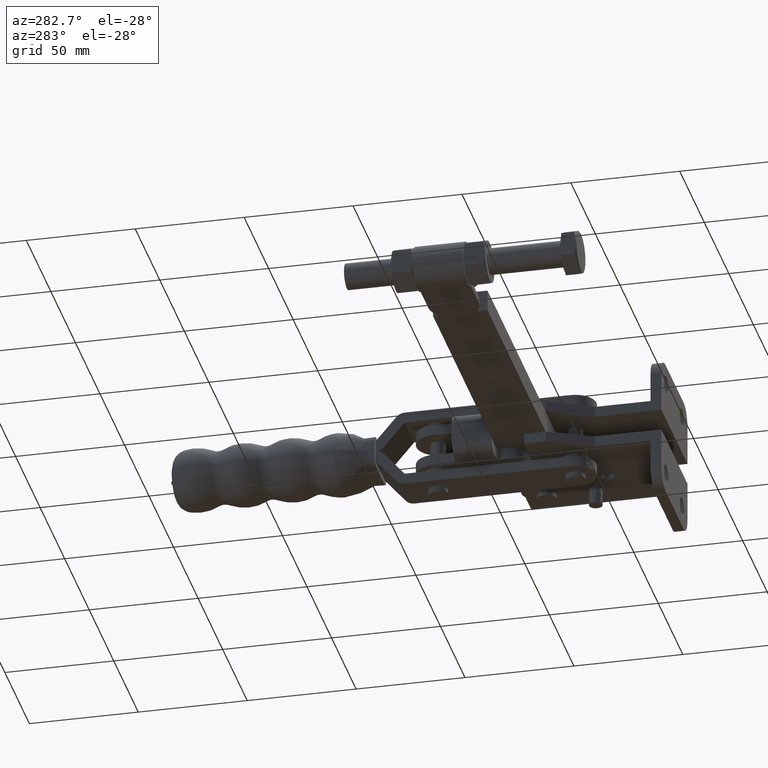
[diagram: clean part render]
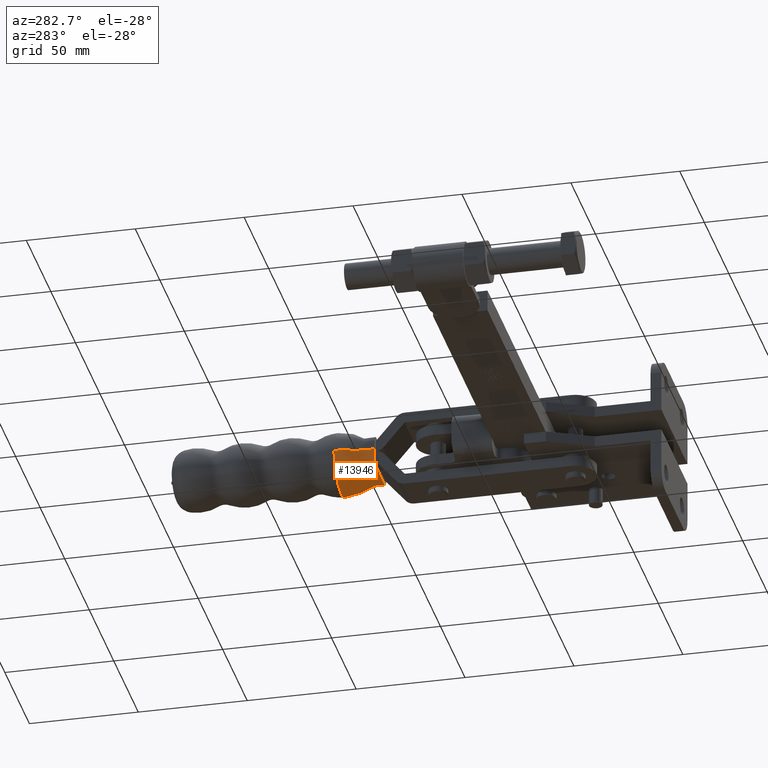
[diagram: same view with one face highlighted and labeled with its STEP entity id]
A machine part, auxiliary view. The second image highlights one B-rep face of the part: STEP entity #13946.
In plain terms, the highlighted face is a freeform B-spline surface patch.
Its self-contained STEP definition (entity closure, byte-faithful):
#10 = CARTESIAN_POINT ( 'NONE',  ( -30.01053185185525500, 159.3120009273787000, -2.921836529711458100 ) ) ;
#17 = CARTESIAN_POINT ( 'NONE',  ( -55.03486626739499600, 167.3329792274489900, -3.275034714053078400E-016 ) ) ;
#42 = CARTESIAN_POINT ( 'NONE',  ( -54.16548582597223300, 165.3823181598201600, 3.454196989813683900 ) ) ;
#96 = CARTESIAN_POINT ( 'NONE',  ( -29.91832499443099300, 165.4016068969946500, -4.243388722230291100 ) ) ;
#131 = CARTESIAN_POINT ( 'NONE',  ( -55.74652299339197000, 172.4300621991223500, 4.625655915123636500 ) ) ;
#179 = CARTESIAN_POINT ( 'NONE',  ( -28.58406031979945900, 172.4460272080390000, -5.534081401126637300 ) ) ;
#207 = CARTESIAN_POINT ( 'NONE',  ( -53.82298042692794100, 158.1116034387089500, 5.262187590426330000 ) ) ;
#255 = CARTESIAN_POINT ( 'NONE',  ( -30.96208082822982600, 158.1365641505115900, -6.447487020183201500 ) ) ;
#286 = CARTESIAN_POINT ( 'NONE',  ( -52.86891405538529700, 163.4881592351077300, 6.489217865222657100 ) ) ;
#337 = CARTESIAN_POINT ( 'NONE',  ( -32.18371685770659200, 163.6366742812349500, -7.284445270039991100 ) ) ;
#369 = CARTESIAN_POINT ( 'NONE',  ( -52.94077917044261700, 169.9701108723987800, 9.206207722965919200 ) ) ;
#420 = CARTESIAN_POINT ( 'NONE',  ( -31.81827798375765000, 169.9909898208158800, -9.962855661030786800 ) ) ;
#444 = CARTESIAN_POINT ( 'NONE',  ( -49.77550734992797700, 156.8555057994146600, 7.399999999999997700 ) ) ;
#451 = VECTOR ( 'NONE', #2764, 1000.000000000000000 ) ;
#499 = CARTESIAN_POINT ( 'NONE',  ( -35.65144055819204300, 156.8552230492491000, -7.400000000000014600 ) ) ;
#529 = CARTESIAN_POINT ( 'NONE',  ( -48.45312621003839800, 161.5266519415627600, 7.375354367326864700 ) ) ;
#549 = CARTESIAN_POINT ( 'NONE',  ( -29.99812900343650000, 160.8114756882146100, -8.690113427833856300E-015 ) ) ;
#581 = CARTESIAN_POINT ( 'NONE',  ( -37.66018564373222000, 161.7066644980565400, -7.399878044846540000 ) ) ;
#610 = CARTESIAN_POINT ( 'NONE',  ( -46.94354951863471800, 167.7295641477970200, 12.40203097414508400 ) ) ;
#663 = CARTESIAN_POINT ( 'NONE',  ( -39.47443347571038400, 167.7746711135998500, -13.05742852621593600 ) ) ;
#695 = CARTESIAN_POINT ( 'NONE',  ( -44.79700276006769900, 174.8554061381716200, 14.32017887598920000 ) ) ;
#742 = CARTESIAN_POINT ( 'NONE',  ( -41.06795610806698700, 174.8553314862619200, -14.50000000000000200 ) ) ;
#773 = CARTESIAN_POINT ( 'NONE',  ( -41.28112603155186400, 159.9238375114901200, 7.400000000000061600 ) ) ;
#827 = CARTESIAN_POINT ( 'NONE',  ( -44.13999833464217900, 159.9028237302933300, -7.401047931045069600 ) ) ;
#861 = CARTESIAN_POINT ( 'NONE',  ( -39.59812557805086200, 165.9206652106610700, 12.35891047920784300 ) ) ;
#915 = CARTESIAN_POINT ( 'NONE',  ( -46.68790751750540100, 165.8532797955492700, -11.78674320466696700 ) ) ;
#943 = CARTESIAN_POINT ( 'NONE',  ( -36.49258739439980600, 172.5416253445966100, 13.51242964295950300 ) ) ;
#984 = CARTESIAN_POINT ( 'NONE',  ( -27.49784786396110900, 174.8550598258110500, -5.867937290491051900E-015 ) ) ;
#998 = CARTESIAN_POINT ( 'NONE',  ( -49.99008970719840100, 172.5408345018066400, -12.20544069266286200 ) ) ;
#1023 = EDGE_CURVE ( 'NONE', #22162, #5192, #23300, .T. ) ;
#1030 = CARTESIAN_POINT ( 'NONE',  ( -34.22088160110315200, 158.2267033922273100, 7.399999999999997700 ) ) ;
#1083 = CARTESIAN_POINT ( 'NONE',  ( -50.94196284809202500, 158.1922918180335100, -7.400000000000001200 ) ) ;
#1106 = CARTESIAN_POINT ( 'NONE',  ( -33.00090943691111500, 163.7450467838650100, 7.535559182082945300 ) ) ;
#1158 = CARTESIAN_POINT ( 'NONE',  ( -51.81242803062977500, 163.6370672290604800, -7.284445270039994600 ) ) ;
#1189 = CARTESIAN_POINT ( 'NONE',  ( -31.05511215597412500, 169.9696727424982000, 9.206207722965933400 ) ) ;
#1252 = CARTESIAN_POINT ( 'NONE',  ( -53.92123600950711200, 169.9298284560750900, -7.912278353078953300 ) ) ;
#1280 = CARTESIAN_POINT ( 'NONE',  ( -30.17341083614880400, 156.8551133843888600, 5.262187590426331800 ) ) ;
#1342 = CARTESIAN_POINT ( 'NONE',  ( -53.99820820125310000, 156.8555903338042600, -4.348231599378971500 ) ) ;
#1369 = CARTESIAN_POINT ( 'NONE',  ( -30.08243040831931500, 160.9460203885532800, 4.361906280226350000 ) ) ;
#1425 = CARTESIAN_POINT ( 'NONE',  ( -53.94036847211530300, 160.9063050107911000, -3.601512774937536000 ) ) ;
#1457 = CARTESIAN_POINT ( 'NONE',  ( -29.37101595736226000, 167.3877777166116200, 4.371266485217666400 ) ) ;
#1509 = CARTESIAN_POINT ( 'NONE',  ( -54.76605723790346000, 167.3701724832752400, -3.575128958162247200 ) ) ;
#1535 = CARTESIAN_POINT ( 'NONE',  ( -27.99210099118675600, 174.8550697202809700, 3.825103683975492200 ) ) ;
#1595 = CARTESIAN_POINT ( 'NONE',  ( -56.28759477348128100, 174.8556361687174400, -2.571108050766369500 ) ) ;
#1626 = CARTESIAN_POINT ( 'NONE',  ( -29.99904199893869400, 159.2801951201578300, 0.9809219685680439200 ) ) ;
#1688 = CARTESIAN_POINT ( 'NONE',  ( -53.99815971285430300, 159.2777052649426000, -0.3289859883935479800 ) ) ;
#1710 = CARTESIAN_POINT ( 'NONE',  ( -29.66564042045369100, 165.3411039990127700, 0.3704850414950774400 ) ) ;
#1737 = CARTESIAN_POINT ( 'NONE',  ( -56.49789724061080400, 172.3888648315816900, -3.630406897098296000E-016 ) ) ;
#1763 = CARTESIAN_POINT ( 'NONE',  ( -54.33043622379091200, 165.3415977643858800, -3.149123926484167700E-016 ) ) ;
#1791 = CARTESIAN_POINT ( 'NONE',  ( -27.49789724642226600, 172.3882842796115800, -0.4266562176204395400 ) ) ;
#1824 = CARTESIAN_POINT ( 'NONE',  ( -53.99818393150189900, 158.0679241497375400, 0.9702240728754804000 ) ) ;
#1871 = CARTESIAN_POINT ( 'NONE',  ( -29.99818383017069900, 158.0727456620921300, -1.934530261371081100 ) ) ;
#1910 = CARTESIAN_POINT ( 'NONE',  ( -53.93877996382811100, 163.1263309956179900, 2.059429438747201400 ) ) ;
#1956 = CARTESIAN_POINT ( 'NONE',  ( -30.10216412009782900, 163.1770216821593100, -3.058837524714856000 ) ) ;
#1968 = CARTESIAN_POINT ( 'NONE',  ( -56.49789724061080400, 172.3888648315816900, -3.630406897098296000E-016 ) ) ;
#1984 = CARTESIAN_POINT ( 'NONE',  ( -55.57706313034836400, 169.8245525707589800, 3.723030553894078700 ) ) ;
#2000 = DIRECTION ( 'NONE',  ( -0.9999999997996190700, 2.001903344682692800E-005, 1.096953554745389000E-017 ) ) ;
#2042 = CARTESIAN_POINT ( 'NONE',  ( -28.62838417513417600, 169.8410350153581300, -4.527037572557110100 ) ) ;
#2070 = CARTESIAN_POINT ( 'NONE',  ( -53.99820820125309200, 156.8555903338042600, 4.348231599378969700 ) ) ;
#2092 = B_SPLINE_CURVE_WITH_KNOTS ( 'NONE', 3,
 ( #15526, #3772, #19457, #7786, #21411, #9736, #23400 ),
 .UNSPECIFIED., .F., .F.,
 ( 4, 1, 1, 1, 4 ),
 ( 0.0000000000000000000, 0.001367397930352761900, 0.002734795862658785100, 0.004102193794964791500, 0.005469591725878869400 ),
 .UNSPECIFIED. ) ;
#2129 = CARTESIAN_POINT ( 'NONE',  ( -30.17341083614877200, 156.8551133843888600, -5.262187590426333500 ) ) ;
#2160 = CARTESIAN_POINT ( 'NONE',  ( -53.72476107689123400, 160.9989239343670700, 5.237475569584044700 ) ) ;
#2217 = CARTESIAN_POINT ( 'NONE',  ( -31.03187929348705200, 161.0934841465709400, -6.363324305820262000 ) ) ;
#2246 = CARTESIAN_POINT ( 'NONE',  ( -53.38988415262491600, 167.4893144473720700, 7.795587145182103100 ) ) ;
#2295 = CARTESIAN_POINT ( 'NONE',  ( -31.59080281201105600, 167.5404888791817400, -9.048820260900077600 ) ) ;
#2323 = CARTESIAN_POINT ( 'NONE',  ( -53.22991396493043900, 174.8555749569031000, 9.217457724937361300 ) ) ;
#2378 = CARTESIAN_POINT ( 'NONE',  ( -31.50636748363422200, 174.8551400724994100, -10.02457953256474000 ) ) ;
#2397 = B_SPLINE_CURVE_WITH_KNOTS ( 'NONE', 3,
 ( #20683, #7023, #18737, #22660, #10977, #24659, #12939 ),
 .UNSPECIFIED., .F., .F.,
 ( 4, 1, 1, 1, 4 ),
 ( 8.673617379884035500E-019, 0.001367408593344762900, 0.002734817187957831200, 0.004102225782570891000, 0.005469634375344124800 ),
 .UNSPECIFIED. ) ;
#2413 = CARTESIAN_POINT ( 'NONE',  ( -49.79991466125416400, 159.6158286790738100, 7.379753156974617300 ) ) ;
#2463 = CARTESIAN_POINT ( 'NONE',  ( -35.61568322559502100, 159.7043172632530700, -7.391871536314698500 ) ) ;
#2497 = CARTESIAN_POINT ( 'NONE',  ( -48.84990026154925900, 165.7580305673096500, 10.90454232679085100 ) ) ;
#2515 = CARTESIAN_POINT ( 'NONE',  ( -29.66564042045369800, 165.3411039990127700, -9.524348031895438500E-015 ) ) ;
#2517 = VECTOR ( 'NONE', #4423, 1000.000000000000000 ) ;
#2544 = CARTESIAN_POINT ( 'NONE',  ( -37.30814863385748500, 165.8530920218422900, -11.78674320466697100 ) ) ;
#2573 = CARTESIAN_POINT ( 'NONE',  ( -47.50320096036539000, 172.5418457664379200, 13.51242964295947500 ) ) ;
#2592 = CARTESIAN_POINT ( 'NONE',  ( -27.87524405219491500, 174.8550673809180600, -3.795344323209579600 ) ) ;
#2626 = CARTESIAN_POINT ( 'NONE',  ( -39.19873926334700100, 172.5424299803930200, -14.32017887598917500 ) ) ;
#2653 = CARTESIAN_POINT ( 'NONE',  ( -42.70651082262935500, 158.3896151656263400, 7.400000000000022600 ) ) ;
#2677 = CARTESIAN_POINT ( 'NONE',  ( -53.99820820125310000, 156.8555903338042600, -3.900000000121559600 ) ) ;
#2687 = CARTESIAN_POINT ( 'NONE',  ( -56.49784785815009500, 174.8556403777810100, -9.335360649693782700E-017 ) ) ;
#2710 = CARTESIAN_POINT ( 'NONE',  ( -42.70651082262935500, 158.3896151656263400, -7.400000000000022600 ) ) ;
#2737 = CARTESIAN_POINT ( 'NONE',  ( -49.30032307497037200, 174.8554962902916000, -12.66990263113675800 ) ) ;
#2744 = CARTESIAN_POINT ( 'NONE',  ( -41.23460551426657600, 164.5246853654079800, 8.109078800241105600 ) ) ;
#2764 = DIRECTION ( 'NONE',  ( 1.096973980815269500E-017, 1.020321491645312400E-017, 1.000000000000000000 ) ) ;
#2801 = CARTESIAN_POINT ( 'NONE',  ( -44.26660453190712000, 164.4806636520141900, -8.095099330426370100 ) ) ;
#2836 = CARTESIAN_POINT ( 'NONE',  ( -39.31949340422634300, 170.0904174365443900, 13.90033456098710500 ) ) ;
#2887 = CARTESIAN_POINT ( 'NONE',  ( -47.26965106849309000, 170.0694471675603600, -13.14438355145014200 ) ) ;
#2917 = CARTESIAN_POINT ( 'NONE',  ( -35.65144055819207800, 156.8552230492491000, 7.400000000000000400 ) ) ;
#2951 = ORIENTED_EDGE ( 'NONE', *, *, #10645, .T. ) ;
#2969 = CARTESIAN_POINT ( 'NONE',  ( -49.77550734992798500, 156.8555057994146600, -7.400000000000000400 ) ) ;
#3004 = CARTESIAN_POINT ( 'NONE',  ( -34.14664740419748800, 161.3882000867956800, 7.338611246194707500 ) ) ;
#3061 = CARTESIAN_POINT ( 'NONE',  ( -50.97413579613108700, 161.2810199593442100, -7.298947582133696000 ) ) ;
#3093 = CARTESIAN_POINT ( 'NONE',  ( -32.35747213312594500, 167.5737094264068200, 9.718816108078376800 ) ) ;
#3148 = CARTESIAN_POINT ( 'NONE',  ( -52.40518577466004000, 167.5409055630110200, -9.048820260900093600 ) ) ;
#3177 = CARTESIAN_POINT ( 'NONE',  ( -30.76578175718078300, 174.8551252466889700, 9.217457724937377300 ) ) ;
#3238 = CARTESIAN_POINT ( 'NONE',  ( -54.17832370961313200, 174.8555939431494700, -7.920762436608535000 ) ) ;
#3264 = CARTESIAN_POINT ( 'NONE',  ( -30.20573529207217700, 159.3803719987688500, 5.254037231023033900 ) ) ;
#3322 = CARTESIAN_POINT ( 'NONE',  ( -53.97035360128449400, 159.3515019923874300, -4.352741694459543200 ) ) ;
#3353 = CARTESIAN_POINT ( 'NONE',  ( -30.03305634290903800, 165.4271077435335800, 5.168155539431762900 ) ) ;
#3412 = CARTESIAN_POINT ( 'NONE',  ( -54.07774922759747900, 165.4020905453172600, -4.243388722230294600 ) ) ;
#3441 = CARTESIAN_POINT ( 'NONE',  ( -28.24926984357838900, 172.4295117306915900, 4.625655915123646300 ) ) ;
#3463 = VERTEX_POINT ( 'NONE', #2677 ) ;
#3471 = EDGE_CURVE ( 'NONE', #3463, #13868, #10240, .T. ) ;
#3494 = CARTESIAN_POINT ( 'NONE',  ( -56.00364355991340700, 172.4165022870884300, -3.825103683975492200 ) ) ;
#3521 = CARTESIAN_POINT ( 'NONE',  ( -29.99818383017069900, 158.0727456620921300, 1.934530261371075300 ) ) ;
#3577 = CARTESIAN_POINT ( 'NONE',  ( -53.99818393150188500, 158.0679241497375400, -0.9702240728754850700 ) ) ;
#3596 = EDGE_CURVE ( 'NONE', #13868, #6100, #8725, .T. ) ;
#3608 = CARTESIAN_POINT ( 'NONE',  ( -30.03106721629260900, 163.0931691648536300, 1.042437647470664900 ) ) ;
#3654 = CARTESIAN_POINT ( 'NONE',  ( -53.97052869974416500, 163.0858010293488300, -0.3502884369014792100 ) ) ;
#3681 = CARTESIAN_POINT ( 'NONE',  ( -28.01642117851967800, 169.7891798659850300, 0.4090090033414615600 ) ) ;
#3712 = CARTESIAN_POINT ( 'NONE',  ( -53.99820820125308500, 156.8555903338042600, 0.3249999999999965100 ) ) ;
#3742 = CARTESIAN_POINT ( 'NONE',  ( -55.97947737204695800, 169.7897396593431600, -3.422081880522385000E-016 ) ) ;
#3768 = CARTESIAN_POINT ( 'NONE',  ( -29.99820820606220600, 156.8551098770015200, -0.9702240728754846200 ) ) ;
#3772 = CARTESIAN_POINT ( 'NONE',  ( -50.94198960878859600, 156.8555291512587600, -7.400000000000002100 ) ) ;
#3802 = CARTESIAN_POINT ( 'NONE',  ( -53.99545361847899700, 160.8173919111964100, 1.002660264734206000 ) ) ;
#3858 = CARTESIAN_POINT ( 'NONE',  ( -30.01371786014572500, 160.8395420749682800, -1.983495367199034300 ) ) ;
#3864 = CARTESIAN_POINT ( 'NONE',  ( -53.99818395705369100, 158.0666477993734100, -2.443292355657275600E-016 ) ) ;
#3886 = CARTESIAN_POINT ( 'NONE',  ( -54.92114404214905200, 167.3494773252845100, 2.372531379243163900 ) ) ;
#3937 = CARTESIAN_POINT ( 'NONE',  ( -29.22993818648156200, 167.3696612748529200, -3.575128958162240100 ) ) ;
#3971 = CARTESIAN_POINT ( 'NONE',  ( -56.00359473092446900, 174.8556304833111600, 3.825103683975485900 ) ) ;
#4015 = CARTESIAN_POINT ( 'NONE',  ( -28.24922128614880600, 174.8550748675807300, -4.625655915123629400 ) ) ;
#4048 = CARTESIAN_POINT ( 'NONE',  ( -53.97035360128449400, 159.3515019923874300, 4.352741694459543200 ) ) ;
#4098 = CARTESIAN_POINT ( 'NONE',  ( -30.20573529207214800, 159.3803719987688500, -5.254037231023033900 ) ) ;
#4101 = EDGE_LOOP ( 'NONE', ( #14494, #22883, #2951, #4323, #20466, #20502, #20294, #18927, #9318 ) ) ;
#4126 = CARTESIAN_POINT ( 'NONE',  ( -53.71665681768043800, 165.4604148014602700, 6.228930661001821400 ) ) ;
#4178 = CARTESIAN_POINT ( 'NONE',  ( -30.99456631826975800, 165.5176038695769300, -7.696028669533542500 ) ) ;
#4205 = CARTESIAN_POINT ( 'NONE',  ( -54.17837095906308800, 172.4953676070197700, 7.920762436608536700 ) ) ;
#4256 = CARTESIAN_POINT ( 'NONE',  ( -30.76582848705670200, 172.5208529126128700, -9.217457724937363000 ) ) ;
#4286 = CARTESIAN_POINT ( 'NONE',  ( -50.94196284809203200, 158.1922918180335100, 7.399999999999999500 ) ) ;
#4323 = ORIENTED_EDGE ( 'NONE', *, *, #11278, .T. ) ;
#4346 = CARTESIAN_POINT ( 'NONE',  ( -34.22088160110313000, 158.2267033922273100, -7.400000000000000400 ) ) ;
#4376 = CARTESIAN_POINT ( 'NONE',  ( -49.91917372004626700, 163.8898610578691800, 7.687483891587497500 ) ) ;
#4423 = DIRECTION ( 'NONE',  ( -1.096973980815269500E-017, -1.020321491645312400E-017, -1.000000000000000000 ) ) ;
#4427 = CARTESIAN_POINT ( 'NONE',  ( -35.43290205384930400, 164.0727658160435600, -7.849054342947153100 ) ) ;
#4458 = CARTESIAN_POINT ( 'NONE',  ( -49.67966320880831400, 170.0396765808930900, 11.93950154989965300 ) ) ;
#4480 = CARTESIAN_POINT ( 'NONE',  ( -28.01642117851967800, 169.7891798659850300, -1.046793864630354500E-014 ) ) ;
#4516 = CARTESIAN_POINT ( 'NONE',  ( -36.72623627614525800, 170.0692360985868600, -13.14438355145014900 ) ) ;
#4547 = CARTESIAN_POINT ( 'NONE',  ( -44.11620239874102400, 156.8553925055995300, 7.399999999999995000 ) ) ;
#4597 = CARTESIAN_POINT ( 'NONE',  ( -41.28987487046624900, 156.8553359252542000, -7.400000000000000400 ) ) ;
#4633 = CARTESIAN_POINT ( 'NONE',  ( -42.73278156585629300, 161.8675610961295800, 7.400000000000075000 ) ) ;
#4684 = CARTESIAN_POINT ( 'NONE',  ( -42.73278156585629300, 161.8675610961295800, -7.400000000000075000 ) ) ;
#4704 = CARTESIAN_POINT ( 'NONE',  ( -53.59301707350579800, 174.8555822258763900, -8.910927439636280300 ) ) ;
#4709 = CARTESIAN_POINT ( 'NONE',  ( -41.15295623684037500, 167.7869829083095100, 13.20995705279834800 ) ) ;
#4765 = CARTESIAN_POINT ( 'NONE',  ( -44.52154574107709800, 167.7747721519091300, -13.05742852621594400 ) ) ;
#4797 = CARTESIAN_POINT ( 'NONE',  ( -39.19869296204353000, 174.8552940654204800, 14.32017887598916800 ) ) ;
#4847 = CARTESIAN_POINT ( 'NONE',  ( -47.50315464403841000, 174.8554603127166400, -13.51242964295948600 ) ) ;
#4880 = CARTESIAN_POINT ( 'NONE',  ( -35.61568322559505600, 159.7043172632530700, 7.391871536314687900 ) ) ;
#4942 = CARTESIAN_POINT ( 'NONE',  ( -49.79991466125417100, 159.6158286790738100, -7.379753156974617300 ) ) ;
#4974 = CARTESIAN_POINT ( 'NONE',  ( -33.80416669677869400, 165.6844291066377100, 10.15772436167573100 ) ) ;
#5027 = CARTESIAN_POINT ( 'NONE',  ( -51.23286260179786200, 165.6259286151002600, -9.513137374335332900 ) ) ;
#5053 = CARTESIAN_POINT ( 'NONE',  ( -31.50641402270041500, 172.5303991568985700, 10.02457953256476700 ) ) ;
#5104 = CARTESIAN_POINT ( 'NONE',  ( -53.22996069480635100, 172.5213026228270800, -9.217457724937384400 ) ) ;
#5135 = CARTESIAN_POINT ( 'NONE',  ( -30.96208082822980100, 158.1365641505115900, 6.447487020183214800 ) ) ;
#5186 = CARTESIAN_POINT ( 'NONE',  ( -53.82298042692792000, 158.1116034387089500, -5.262187590426344200 ) ) ;
#5192 = VERTEX_POINT ( 'NONE', #16523 ) ;
#5213 = CARTESIAN_POINT ( 'NONE',  ( -30.40050221057209300, 163.3540566607933600, 5.357960704582399800 ) ) ;
#5273 = CARTESIAN_POINT ( 'NONE',  ( -53.79827879687443500, 163.2796877570372700, -4.483788916191819900 ) ) ;
#5300 = CARTESIAN_POINT ( 'NONE',  ( -28.90128785171978600, 169.8621918344328800, 5.449616005146326700 ) ) ;
#5355 = CARTESIAN_POINT ( 'NONE',  ( -55.36751229974311200, 169.8415703068592100, -4.527037572557115500 ) ) ;
#5376 = CARTESIAN_POINT ( 'NONE',  ( -29.99820820606219500, 156.8551098770015200, 2.905685794050668000 ) ) ;
#5434 = CARTESIAN_POINT ( 'NONE',  ( -53.99820820125307100, 156.8555903338042600, -1.934530261371077300 ) ) ;
#5460 = CARTESIAN_POINT ( 'NONE',  ( -30.01371786014572900, 160.8395420749682500, 1.983495367199032100 ) ) ;
#5519 = CARTESIAN_POINT ( 'NONE',  ( -53.99545361847896900, 160.8173919111964100, -1.002660264734209300 ) ) ;
#5544 = CARTESIAN_POINT ( 'NONE',  ( -28.98136457877749500, 167.3356484633964400, 1.174141167624054500 ) ) ;
#5591 = EDGE_CURVE ( 'NONE', #5192, #6100, #21481, .T. ) ;
#5604 = CARTESIAN_POINT ( 'NONE',  ( -55.03486626739499600, 167.3329792274489900, -0.3877210822063194000 ) ) ;
#5634 = CARTESIAN_POINT ( 'NONE',  ( -27.49784786396112300, 174.8550598258110500, 0.4266562176204433700 ) ) ;
#5664 = CARTESIAN_POINT ( 'NONE',  ( -53.99815971285429600, 159.2777052649426000, 0.3289859883935474200 ) ) ;
#5690 = CARTESIAN_POINT ( 'NONE',  ( -56.49784785815008800, 174.8556403777810100, -6.863658699046109400E-016 ) ) ;
#5721 = CARTESIAN_POINT ( 'NONE',  ( -29.99904199893869000, 159.2801951201578300, -0.9809219685680474800 ) ) ;
#5747 = CARTESIAN_POINT ( 'NONE',  ( -54.31833187597288800, 165.3450849826672600, 1.123504302213652400 ) ) ;
#5792 = CARTESIAN_POINT ( 'NONE',  ( -29.73483244072726000, 165.3591242170399800, -2.280076279857010200 ) ) ;
#5827 = CARTESIAN_POINT ( 'NONE',  ( -56.28764390878302500, 172.4012068928482800, 2.571108050766369500 ) ) ;
#5889 = CARTESIAN_POINT ( 'NONE',  ( -27.99214982017571900, 172.4159415240580700, -3.825103683975478800 ) ) ;
#5920 = CARTESIAN_POINT ( 'NONE',  ( -53.99818351291226300, 158.0888337308424800, 3.565082673646924800 ) ) ;
#5972 = CARTESIAN_POINT ( 'NONE',  ( -29.99818332338375300, 158.0980609172050600, -4.348231599378971500 ) ) ;
#6002 = CARTESIAN_POINT ( 'NONE',  ( -53.79827879687444900, 163.2796877570372900, 4.483788916191817200 ) ) ;
#6051 = CARTESIAN_POINT ( 'NONE',  ( -30.40050221057207100, 163.3540566607933300, -5.357960704582397100 ) ) ;
#6086 = CARTESIAN_POINT ( 'NONE',  ( -54.70979536431112000, 169.8888350237187400, 6.478196823743306100 ) ) ;
#6089 = CARTESIAN_POINT ( 'NONE',  ( -29.99820820606220900, 156.8551098770015200, -1.127570259384924600E-014 ) ) ;
#6100 = VERTEX_POINT ( 'NONE', #2687 ) ;
#6132 = CARTESIAN_POINT ( 'NONE',  ( -30.07465693052545000, 169.9293510706102700, -7.912278353078922200 ) ) ;
#6160 = CARTESIAN_POINT ( 'NONE',  ( -51.84883284933828000, 156.8555473053871800, 7.228372528394113600 ) ) ;
#6214 = CARTESIAN_POINT ( 'NONE',  ( -33.05442679852669100, 156.8551710595437500, -7.400000000000000400 ) ) ;
#6238 = CARTESIAN_POINT ( 'NONE',  ( -50.97413579613111500, 161.2810199593442100, 7.298947582133696900 ) ) ;
#6291 = CARTESIAN_POINT ( 'NONE',  ( -34.14664740419745900, 161.3882000867956800, -7.338611246194704800 ) ) ;
#6322 = CARTESIAN_POINT ( 'NONE',  ( -50.58887436264854600, 167.6163008913283400, 10.48945490821284000 ) ) ;
#6342 = CARTESIAN_POINT ( 'NONE',  ( -29.99818396185493400, 158.0661673425707100, -9.336390145452519200E-015 ) ) ;
#6343 = CARTESIAN_POINT ( 'NONE',  ( -38.20250353860655700, 174.8552741226711200, -14.12260381169060100 ) ) ;
#6372 = CARTESIAN_POINT ( 'NONE',  ( -34.78464796001191000, 167.6654554374176500, -11.37404302906071900 ) ) ;
#6402 = CARTESIAN_POINT ( 'NONE',  ( -49.99004336963022200, 174.8555100978252600, 12.20544069266287000 ) ) ;
#6419 = CARTESIAN_POINT ( 'NONE',  ( -27.49784786396110900, 174.8550598258110500, -5.867937290491051900E-015 ) ) ;
#6455 = CARTESIAN_POINT ( 'NONE',  ( -36.49254107807279700, 174.8552398908753700, -13.51242964295949600 ) ) ;
#6492 = CARTESIAN_POINT ( 'NONE',  ( -44.13999833464217200, 159.9028237302933300, 7.401047931045059000 ) ) ;
#6543 = CARTESIAN_POINT ( 'NONE',  ( -41.28112603155186400, 159.9238375114901200, -7.400000000000061600 ) ) ;
#6573 = CARTESIAN_POINT ( 'NONE',  ( -42.80549376486603600, 165.9384890344237000, 12.49517666581065200 ) ) ;
#6614 = CARTESIAN_POINT ( 'NONE',  ( -29.99820820606220900, 156.8551098770015200, -3.899999999999976400 ) ) ;
#6621 = CARTESIAN_POINT ( 'NONE',  ( -42.80549376486603600, 165.9384890344237000, -12.49517666581063800 ) ) ;
#6647 = CARTESIAN_POINT ( 'NONE',  ( -56.12045166991631400, 174.8556328226741200, -3.795344323209568000 ) ) ;
#6656 = CARTESIAN_POINT ( 'NONE',  ( -41.06800238476648700, 172.5436964312583000, 14.50000000000662900 ) ) ;
#6708 = CARTESIAN_POINT ( 'NONE',  ( -44.79704906137116900, 172.5425420531441900, -14.32017887598918400 ) ) ;
#6737 = CARTESIAN_POINT ( 'NONE',  ( -37.77089492443956700, 158.3349972417551000, 7.400000000000000400 ) ) ;
#6790 = CARTESIAN_POINT ( 'NONE',  ( -48.34494745532518300, 158.2738172686929700, -7.400000000000005700 ) ) ;
#6817 = CARTESIAN_POINT ( 'NONE',  ( -35.43290205384933200, 164.0727658160435900, 7.849054342947142400 ) ) ;
#6870 = CARTESIAN_POINT ( 'NONE',  ( -49.91917372004626000, 163.8898610578691800, -7.687483891587501000 ) ) ;
#6896 = CARTESIAN_POINT ( 'NONE',  ( -32.88588162187334500, 170.0156346267155800, 10.88719421311606400 ) ) ;
#6951 = CARTESIAN_POINT ( 'NONE',  ( -52.17761248977620900, 169.9913973950148100, -9.962855661030804600 ) ) ;
#6976 = CARTESIAN_POINT ( 'NONE',  ( -32.14758355797705000, 156.8551529054186100, 7.228372528394118000 ) ) ;
#7023 = CARTESIAN_POINT ( 'NONE',  ( -29.99820820606220200, 156.8551098770012700, -4.348231599378971500 ) ) ;
#7036 = CARTESIAN_POINT ( 'NONE',  ( -53.03430992599582800, 156.8555710374924400, -6.447487020183215700 ) ) ;
#7067 = CARTESIAN_POINT ( 'NONE',  ( -31.03187929348703000, 161.0934841465709400, 6.363324305820283300 ) ) ;
#7127 = CARTESIAN_POINT ( 'NONE',  ( -53.72476107689117700, 160.9989239343670700, -5.237475569584056200 ) ) ;
#7154 = CARTESIAN_POINT ( 'NONE',  ( -29.86142325503901400, 167.4399038784889100, 6.342354808033370300 ) ) ;
#7212 = CARTESIAN_POINT ( 'NONE',  ( -54.44096678794397800, 167.4112787686294400, -5.295461589951461400 ) ) ;
#7245 = CARTESIAN_POINT ( 'NONE',  ( -28.58401209285961600, 174.8550815697690800, 5.534081401126663000 ) ) ;
#7304 = CARTESIAN_POINT ( 'NONE',  ( -55.74647443596240500, 174.8556253360113400, -4.625655915123638300 ) ) ;
#7328 = CARTESIAN_POINT ( 'NONE',  ( -30.01053185185524400, 159.3120009273787300, 2.921836529711459000 ) ) ;
#7396 = CARTESIAN_POINT ( 'NONE',  ( -53.99301780452477600, 159.2930305125271700, -1.950679616912083000 ) ) ;
#7428 = CARTESIAN_POINT ( 'NONE',  ( -29.73483244072726700, 165.3591242170399800, 2.280076279857012400 ) ) ;
#7487 = CARTESIAN_POINT ( 'NONE',  ( -54.31833187597286600, 165.3450849826672900, -1.123504302213655700 ) ) ;
#7512 = CARTESIAN_POINT ( 'NONE',  ( -27.53571046262612400, 172.3906669996285600, 1.286538738965417300 ) ) ;
#7549 = CARTESIAN_POINT ( 'NONE',  ( -53.99818395705369100, 158.0666477993734100, -2.443292355657275600E-016 ) ) ;
#7574 = CARTESIAN_POINT ( 'NONE',  ( -56.49789724061080400, 172.3888648315816900, -0.4266562176204421500 ) ) ;
#7603 = CARTESIAN_POINT ( 'NONE',  ( -29.99818396185493400, 158.0661673425707100, -0.3249999999999992300 ) ) ;
#7638 = CARTESIAN_POINT ( 'NONE',  ( -53.97052869974416500, 163.0858010293488300, 0.3502884369014785900 ) ) ;
#7694 = CARTESIAN_POINT ( 'NONE',  ( -30.03106721629260900, 163.0931691648536300, -1.042437647470668700 ) ) ;
#7730 = CARTESIAN_POINT ( 'NONE',  ( -55.94874568893847300, 169.7927326404305300, 1.236556816163452600 ) ) ;
#7782 = CARTESIAN_POINT ( 'NONE',  ( -28.18750088159734100, 169.8046823293577700, -2.486074867352141600 ) ) ;
#7786 = CARTESIAN_POINT ( 'NONE',  ( -53.03430992599582800, 156.8555710374893400, -6.447487020183217500 ) ) ;
#7792 = CARTESIAN_POINT ( 'NONE',  ( -53.99820820125309200, 156.8555903338042600, -1.301042606982605300E-015 ) ) ;
#7809 = CARTESIAN_POINT ( 'NONE',  ( -53.99820820125310700, 156.8555903338042600, 2.905685794050667500 ) ) ;
#7867 = CARTESIAN_POINT ( 'NONE',  ( -29.99820820606220900, 156.8551098770015200, -3.565082673646929200 ) ) ;
#7898 = CARTESIAN_POINT ( 'NONE',  ( -53.94036847211533100, 160.9063050107911300, 3.601512774937534200 ) ) ;
#7952 = CARTESIAN_POINT ( 'NONE',  ( -30.08243040831931500, 160.9460203885532800, -4.361906280226349100 ) ) ;
#7979 = CARTESIAN_POINT ( 'NONE',  ( -54.44096678794395700, 167.4112787686294700, 5.295461589951457000 ) ) ;
#8037 = CARTESIAN_POINT ( 'NONE',  ( -29.86142325503900400, 167.4399038784888800, -6.342354808033363200 ) ) ;
#8063 = EDGE_CURVE ( 'NONE', #20203, #3463, #2092, .T. ) ;
#8066 = CARTESIAN_POINT ( 'NONE',  ( -54.97699629980313300, 174.8556099318028000, 6.531058868790505100 ) ) ;
#8123 = CARTESIAN_POINT ( 'NONE',  ( -29.81737201249806900, 174.8551062604425700, -7.920762436608498500 ) ) ;
#8151 = CARTESIAN_POINT ( 'NONE',  ( -51.84560384549946800, 159.4989104142666200, 7.190825429620817400 ) ) ;
#8204 = CARTESIAN_POINT ( 'NONE',  ( -33.04374142334621900, 159.5479777255992200, -7.366671542993612000 ) ) ;
#8238 = CARTESIAN_POINT ( 'NONE',  ( -51.23286260179786200, 165.6259286151002900, 9.513137374335340000 ) ) ;
#8283 = CARTESIAN_POINT ( 'NONE',  ( -33.80416669677867200, 165.6844291066377100, -10.15772436167571300 ) ) ;
#8316 = CARTESIAN_POINT ( 'NONE',  ( -51.43260366782388400, 172.5391003503272600, 11.04840651980919100 ) ) ;
#8370 = CARTESIAN_POINT ( 'NONE',  ( -34.00569869004916500, 172.5405145097481600, -12.20544069266285300 ) ) ;
#8393 = CARTESIAN_POINT ( 'NONE',  ( -46.22546223727643200, 158.3351664940209400, 7.400000000000003000 ) ) ;
#8437 = CARTESIAN_POINT ( 'NONE',  ( -33.08692042320490900, 174.8551717136416200, -11.59516921477363600 ) ) ;
#8454 = CARTESIAN_POINT ( 'NONE',  ( -39.88018351485254000, 158.3785441682614100, -7.400000000000008300 ) ) ;
#8483 = CARTESIAN_POINT ( 'NONE',  ( -44.26660453190712000, 164.4806636520141900, 8.095099330426366500 ) ) ;
#8534 = CARTESIAN_POINT ( 'NONE',  ( -41.23460551426656900, 164.5246853654079800, -8.109078800241105600 ) ) ;
#8568 = CARTESIAN_POINT ( 'NONE',  ( -42.88937299758844500, 170.0968834836605500, 14.07235451870534200 ) ) ;
#8628 = CARTESIAN_POINT ( 'NONE',  ( -42.88937299758845300, 170.0968834836605500, -14.07235451870535000 ) ) ;
#8648 = CARTESIAN_POINT ( 'NONE',  ( -56.49784785815009500, 174.8556403777810100, -9.335360649693782700E-017 ) ) ;
#8657 = CARTESIAN_POINT ( 'NONE',  ( -39.88021400857426400, 156.8553077052062600, 7.399999999999998600 ) ) ;
#8713 = CARTESIAN_POINT ( 'NONE',  ( -46.22549186007607600, 156.8554347315358100, -7.399999999999990600 ) ) ;
#8725 = B_SPLINE_CURVE_WITH_KNOTS ( 'NONE', 3,
 ( #7792, #3864, #15534, #9747, #23404, #11715, #17, #13661, #1968, #15621 ),
 .UNSPECIFIED., .F., .F.,
 ( 4, 2, 1, 2, 1, 4 ),
 ( 0.0000000000000000000, 0.1980163457136858400, 0.2508607240512942800, 0.5695960111270812500, 0.5966649863928764600, 1.000000000000000000 ),
 .UNSPECIFIED. ) ;
#8739 = CARTESIAN_POINT ( 'NONE',  ( -37.66018564373222700, 161.7066644980565400, 7.399878044846548900 ) ) ;
#8787 = CARTESIAN_POINT ( 'NONE',  ( -48.45312621003839800, 161.5266519415627600, -7.375354367326870000 ) ) ;
#8815 = CARTESIAN_POINT ( 'NONE',  ( -34.78464796001192400, 167.6654554374176500, 11.37404302906071300 ) ) ;
#8869 = CARTESIAN_POINT ( 'NONE',  ( -50.58887436264856800, 167.6163008913283100, -10.48945490821284900 ) ) ;
#8901 = CARTESIAN_POINT ( 'NONE',  ( -32.56313842714966000, 174.8551612280322700, 11.04840651980919800 ) ) ;
#8957 = CARTESIAN_POINT ( 'NONE',  ( -52.48932823847697200, 174.8555601310926600, -10.02457953256476000 ) ) ;
#8989 = CARTESIAN_POINT ( 'NONE',  ( -32.15070672666092100, 159.4985161414623700, 7.190825429620822700 ) ) ;
#9040 = CARTESIAN_POINT ( 'NONE',  ( -53.01121827295661900, 159.4356151323944200, -6.419729016303509900 ) ) ;
#9072 = CARTESIAN_POINT ( 'NONE',  ( -30.99456631826975800, 165.5176038695769300, 7.696028669533579800 ) ) ;
#9126 = CARTESIAN_POINT ( 'NONE',  ( -53.71665681768042300, 165.4604148014602500, -6.228930661001827600 ) ) ;
#9151 = CARTESIAN_POINT ( 'NONE',  ( -29.01874725103704800, 172.4659275249074700, 6.531058868790517600 ) ) ;
#9213 = CARTESIAN_POINT ( 'NONE',  ( -55.41173185619145200, 172.4465642720930700, -5.534081401126654100 ) ) ;
#9240 = CARTESIAN_POINT ( 'NONE',  ( -29.99818351772139000, 158.0883532740397500, 3.565082673646925200 ) ) ;
#9293 = CARTESIAN_POINT ( 'NONE',  ( -53.99818365729938600, 158.0816212399020600, -2.905685794050673300 ) ) ;
#9316 = CARTESIAN_POINT ( 'NONE',  ( -30.10216412009781800, 163.1770216821593400, 3.058837524714858700 ) ) ;
#9318 = ORIENTED_EDGE ( 'NONE', *, *, #1023, .F. ) ;
#9360 = CARTESIAN_POINT ( 'NONE',  ( -29.32794523245765100, 174.8550964625914900, -7.302475215378060500 ) ) ;
#9371 = CARTESIAN_POINT ( 'NONE',  ( -53.93877996382811100, 163.1263309956179600, -2.059429438747201400 ) ) ;
#9396 = CARTESIAN_POINT ( 'NONE',  ( -28.18750088159734800, 169.8046823293577500, 2.486074867352147300 ) ) ;
#9422 = CARTESIAN_POINT ( 'NONE',  ( -53.99820820125309200, 156.8555903338042600, -1.234859299564882300E-015 ) ) ;
#9448 = CARTESIAN_POINT ( 'NONE',  ( -55.94874568893843800, 169.7927326404305600, -1.236556816163456800 ) ) ;
#9475 = CARTESIAN_POINT ( 'NONE',  ( -29.99820820606220900, 156.8551098770015200, 0.3249999999999962400 ) ) ;
#9509 = CARTESIAN_POINT ( 'NONE',  ( -53.99812899863525900, 160.8119561450173500, -2.723408095078152400E-016 ) ) ;
#9538 = CARTESIAN_POINT ( 'NONE',  ( -53.99820820125309200, 156.8555903338042600, -1.234859299564882300E-015 ) ) ;
#9569 = CARTESIAN_POINT ( 'NONE',  ( -29.99812900343650000, 160.8114756882146100, -0.3370855809399688200 ) ) ;
#9599 = CARTESIAN_POINT ( 'NONE',  ( -55.03486626739499600, 167.3329792274489900, 0.3877210822063186800 ) ) ;
#9623 = CARTESIAN_POINT ( 'NONE',  ( -27.49784786396110900, 174.8550598258110500, -5.867937290491051900E-015 ) ) ;
#9650 = CARTESIAN_POINT ( 'NONE',  ( -28.98136457877749800, 167.3356484633964400, -1.174141167624059200 ) ) ;
#9683 = CARTESIAN_POINT ( 'NONE',  ( -56.46003459426269400, 174.8556396207960100, 1.286538738965417500 ) ) ;
#9731 = CARTESIAN_POINT ( 'NONE',  ( -27.70810094862992300, 174.8550640348746000, -2.571108050766364600 ) ) ;
#9736 = CARTESIAN_POINT ( 'NONE',  ( -53.99820820125310000, 156.8555903338012500, -4.348231599378971500 ) ) ;
#9747 = CARTESIAN_POINT ( 'NONE',  ( -53.99812899863525900, 160.8119561450173500, -2.723408095078152400E-016 ) ) ;
#9771 = CARTESIAN_POINT ( 'NONE',  ( -53.98578618629635200, 159.3124808887972400, 2.921836529711458100 ) ) ;
#9819 = CARTESIAN_POINT ( 'NONE',  ( -30.01720826650842600, 159.3288105680553300, -3.577097814800796800 ) ) ;
#9856 = CARTESIAN_POINT ( 'NONE',  ( -54.07774922759746500, 165.4020905453172900, 4.243388722230294600 ) ) ;
#9911 = CARTESIAN_POINT ( 'NONE',  ( -30.03305634290903500, 165.4271077435335800, -5.168155539431751300 ) ) ;
#9938 = CARTESIAN_POINT ( 'NONE',  ( -55.41173185619145200, 172.4465642720930700, 5.534081401126650600 ) ) ;
#9995 = CARTESIAN_POINT ( 'NONE',  ( -29.01874725103703800, 172.4659275249074700, -6.531058868790498000 ) ) ;
#10026 = CARTESIAN_POINT ( 'NONE',  ( -53.03428427290612700, 158.1370060146906600, 6.447487020183214800 ) ) ;
#10074 = CARTESIAN_POINT ( 'NONE',  ( -32.14755729803737000, 158.1669015315034400, -7.228372528394117100 ) ) ;
#10105 = CARTESIAN_POINT ( 'NONE',  ( -51.81242803062981700, 163.6370672290604800, 7.284445270039986700 ) ) ;
#10164 = CARTESIAN_POINT ( 'NONE',  ( -33.00090943691109400, 163.7450467838650100, -7.535559182082940800 ) ) ;
#10197 = CARTESIAN_POINT ( 'NONE',  ( -52.17761248977620900, 169.9913973950147900, 9.962855661030797400 ) ) ;
#10240 = LINE ( 'NONE', #12413, #451 ) ;
#10250 = CARTESIAN_POINT ( 'NONE',  ( -32.88588162187331700, 170.0156346267155800, -10.88719421311605400 ) ) ;
#10278 = CARTESIAN_POINT ( 'NONE',  ( -48.34497584912322300, 156.8554771615566800, 7.399999999999995000 ) ) ;
#10321 = CARTESIAN_POINT ( 'NONE',  ( -37.77092454723921100, 156.8552654792699500, -7.399999999999991500 ) ) ;
#10353 = CARTESIAN_POINT ( 'NONE',  ( -46.33603652285527400, 161.7068381802054900, 7.399878044846548000 ) ) ;
#10409 = CARTESIAN_POINT ( 'NONE',  ( -39.80777969789567500, 161.8344240140945400, -7.403177343788722300 ) ) ;
#10441 = CARTESIAN_POINT ( 'NONE',  ( -44.52154574107709800, 167.7747721519091300, 13.05742852621594400 ) ) ;
#10495 = CARTESIAN_POINT ( 'NONE',  ( -41.15295623684036700, 167.7869829083095400, -13.20995705279835300 ) ) ;
#10521 = CARTESIAN_POINT ( 'NONE',  ( -42.92773961404422100, 174.8553687173301200, 14.50000000000000200 ) ) ;
#10579 = CARTESIAN_POINT ( 'NONE',  ( -42.92773961404421400, 174.8553687173301200, -14.50000000000000200 ) ) ;
#10603 = CARTESIAN_POINT ( 'NONE',  ( -39.85629605943681500, 159.9027379747142000, 7.401047931045060800 ) ) ;
#10645 = EDGE_CURVE ( 'NONE', #10914, #19071, #2397, .T. ) ;
#10655 = CARTESIAN_POINT ( 'NONE',  ( -46.26192365981731300, 159.8206086377954600, -7.399959777537517900 ) ) ;
#10686 = CARTESIAN_POINT ( 'NONE',  ( -37.30814863385749200, 165.8530920218422900, 11.78674320466699600 ) ) ;
#10728 = CARTESIAN_POINT ( 'NONE',  ( -48.84990026154926600, 165.7580305673096500, -10.90454232679083900 ) ) ;
#10759 = CARTESIAN_POINT ( 'NONE',  ( -34.00569869004917900, 172.5405145097481400, 12.20544069266286200 ) ) ;
#10818 = CARTESIAN_POINT ( 'NONE',  ( -51.43260366782388400, 172.5391003503272900, -11.04840651980920200 ) ) ;
#10853 = CARTESIAN_POINT ( 'NONE',  ( -33.05440003783018500, 158.1919337263152600, 7.400000000000000400 ) ) ;
#10909 = CARTESIAN_POINT ( 'NONE',  ( -51.84880658939862700, 158.1672959314720400, -7.228372528394118900 ) ) ;
#10914 = VERTEX_POINT ( 'NONE', #6614 ) ;
#10938 = CARTESIAN_POINT ( 'NONE',  ( -32.18371685770663500, 163.6366742812349500, 7.284445270039994600 ) ) ;
#10977 = CARTESIAN_POINT ( 'NONE',  ( -32.14758355797700100, 156.8551529054183500, -7.228372528394117100 ) ) ;
#10996 = CARTESIAN_POINT ( 'NONE',  ( -52.86891405538530400, 163.4881592351077300, -6.489217865222654400 ) ) ;
#11024 = CARTESIAN_POINT ( 'NONE',  ( -30.07465693052547500, 169.9293510706102700, 7.912278353078967500 ) ) ;
#11082 = CARTESIAN_POINT ( 'NONE',  ( -54.70979536431109100, 169.8888350237187700, -6.478196823743315800 ) ) ;
#11109 = CARTESIAN_POINT ( 'NONE',  ( -29.99820820606220900, 156.8551098770015200, 4.348231599378969700 ) ) ;
#11164 = CARTESIAN_POINT ( 'NONE',  ( -53.99820820125309200, 156.8555903338042600, -3.565082673646929200 ) ) ;
#11187 = CARTESIAN_POINT ( 'NONE',  ( -30.05588575236441100, 160.9058268665326100, 3.601512774937536000 ) ) ;
#11239 = CARTESIAN_POINT ( 'NONE',  ( -53.96061310549383400, 160.8755132360898300, -2.954655084424011100 ) ) ;
#11264 = CARTESIAN_POINT ( 'NONE',  ( -29.22993818648155800, 167.3696612748529400, 3.575128958162244100 ) ) ;
#11278 = EDGE_CURVE ( 'NONE', #19071, #20203, #18356, .T. ) ;
#11328 = CARTESIAN_POINT ( 'NONE',  ( -54.92114404214908800, 167.3494773252844800, -2.372531379243163900 ) ) ;
#11354 = CARTESIAN_POINT ( 'NONE',  ( -27.70810094862993000, 174.8550640348745400, 2.571108050766378400 ) ) ;
#11416 = CARTESIAN_POINT ( 'NONE',  ( -56.46003459426265900, 174.8556396207960400, -1.286538738965422800 ) ) ;
#11442 = CARTESIAN_POINT ( 'NONE',  ( -29.99815971765555700, 159.2772248081398600, 0.3289859883935470900 ) ) ;
#11474 = CARTESIAN_POINT ( 'NONE',  ( -54.33043622379091200, 165.3415977643858800, -3.149123926484167700E-016 ) ) ;
#11495 = CARTESIAN_POINT ( 'NONE',  ( -53.99815971285429600, 159.2777052649426000, -2.566861811156640200E-016 ) ) ;
#11524 = CARTESIAN_POINT ( 'NONE',  ( -29.66564042045369100, 165.3411039990127700, -0.3704850414950786000 ) ) ;
#11557 = CARTESIAN_POINT ( 'NONE',  ( -56.49789724061080400, 172.3888648315816900, 0.4266562176204408700 ) ) ;
#11609 = CARTESIAN_POINT ( 'NONE',  ( -27.53571046262613100, 172.3906669996285400, -1.286538738965417900 ) ) ;
#11646 = CARTESIAN_POINT ( 'NONE',  ( -53.99818382536155800, 158.0732261188948700, 1.934530261371076000 ) ) ;
#11703 = CARTESIAN_POINT ( 'NONE',  ( -29.99818366210848500, 158.0811407830993600, -2.905685794050669300 ) ) ;
#11715 = CARTESIAN_POINT ( 'NONE',  ( -54.33043622379091200, 165.3415977643858800, -3.149123926484167700E-016 ) ) ;
#11737 = CARTESIAN_POINT ( 'NONE',  ( -53.89399917017087900, 163.1774979717010300, 3.058837524714856900 ) ) ;
#11787 = CARTESIAN_POINT ( 'NONE',  ( -30.14356561283740300, 163.2214953358092400, -3.716627520683859900 ) ) ;
#11818 = CARTESIAN_POINT ( 'NONE',  ( -55.36751229974311200, 169.8415703068592100, 4.527037572557113700 ) ) ;
#11860 = CARTESIAN_POINT ( 'NONE',  ( -28.90128785171977600, 169.8621918344328800, -5.449616005146312500 ) ) ;
#11897 = CARTESIAN_POINT ( 'NONE',  ( -53.82300557116652600, 156.8555868264169200, 5.262187590426330900 ) ) ;
#11949 = CARTESIAN_POINT ( 'NONE',  ( -30.96210648131950200, 156.8551291733133400, -6.447487020183202400 ) ) ;
#11988 = CARTESIAN_POINT ( 'NONE',  ( -52.96436741834115500, 161.0939232137843900, 6.363324305820280600 ) ) ;
#12042 = CARTESIAN_POINT ( 'NONE',  ( -32.15712650902604300, 161.2006975069223200, -7.114529120816652800 ) ) ;
#12069 = CARTESIAN_POINT ( 'NONE',  ( -52.40518577466004000, 167.5409055630110500, 9.048820260900074100 ) ) ;
#12123 = CARTESIAN_POINT ( 'NONE',  ( -32.35747213312591700, 167.5737094264067900, -9.718816108078360800 ) ) ;
#12149 = CARTESIAN_POINT ( 'NONE',  ( -52.48932823847697200, 174.8555601310926600, 10.02457953256475600 ) ) ;
#12194 = CARTESIAN_POINT ( 'NONE',  ( -32.56313842714963200, 174.8551612280322700, -11.04840651980918100 ) ) ;
#12226 = CARTESIAN_POINT ( 'NONE',  ( -48.38061910946517200, 159.7045728049315300, 7.391871536314683400 ) ) ;
#12244 = CARTESIAN_POINT ( 'NONE',  ( -29.99815971765555700, 159.2772248081398600, -8.533005629339285800E-015 ) ) ;
#12279 = CARTESIAN_POINT ( 'NONE',  ( -29.99820820606220900, 156.8551098770015200, -3.899999999999976400 ) ) ;
#12284 = CARTESIAN_POINT ( 'NONE',  ( -37.73437402769518200, 159.8204379244941400, -7.399959777537519700 ) ) ;
#12315 = CARTESIAN_POINT ( 'NONE',  ( -46.68790751750539400, 165.8532797955492700, 11.78674320466698200 ) ) ;
#12350 = CARTESIAN_POINT ( 'NONE',  ( -40.09980229989209700, 174.8553121047584100, -14.50000000000001600 ) ) ;
#12363 = CARTESIAN_POINT ( 'NONE',  ( -39.59812557805084800, 165.9206652106611000, -12.35891047920783400 ) ) ;
#12384 = CARTESIAN_POINT ( 'NONE',  ( -41.99784786105560400, 174.8553501017960300, -14.50000000000001200 ) ) ;
#12388 = CARTESIAN_POINT ( 'NONE',  ( -44.79704906137118300, 172.5425420531441600, 14.32017887598920000 ) ) ;
#12413 = CARTESIAN_POINT ( 'NONE',  ( -53.99820820125309200, 156.8555903338042600, -3.899999999999976400 ) ) ;
#12443 = CARTESIAN_POINT ( 'NONE',  ( -41.06800238476648000, 172.5436964312583000, -14.50000000000662900 ) ) ;
#12462 = CARTESIAN_POINT ( 'NONE',  ( -43.89589342221910300, 174.8553880988336600, -14.50000000000002300 ) ) ;
#12472 = CARTESIAN_POINT ( 'NONE',  ( -41.28984415624656600, 158.3895868053289500, 7.400000000000022600 ) ) ;
#12522 = CARTESIAN_POINT ( 'NONE',  ( -44.11617190501933500, 158.3786289686547100, -7.400000000000010100 ) ) ;
#12552 = CARTESIAN_POINT ( 'NONE',  ( -39.72950657441247600, 164.4805728236984000, 8.095099330426359400 ) ) ;
#12611 = CARTESIAN_POINT ( 'NONE',  ( -46.45302592098265400, 164.3116103048074300, -8.010297161412575300 ) ) ;
#12635 = CARTESIAN_POINT ( 'NONE',  ( -36.72623627614527200, 170.0692360985868600, 13.14438355145015100 ) ) ;
#12689 = CARTESIAN_POINT ( 'NONE',  ( -49.67966320880831400, 170.0396765808931100, -11.93950154989965100 ) ) ;
#12716 = CARTESIAN_POINT ( 'NONE',  ( -34.22090905738731700, 156.8551944113911200, 7.399999999999998600 ) ) ;
#12772 = CARTESIAN_POINT ( 'NONE',  ( -50.94198960878857500, 156.8555291512620300, -7.400000000000002100 ) ) ;
#12804 = CARTESIAN_POINT ( 'NONE',  ( -33.02210342311067800, 161.2806605770076400, 7.298947582133698700 ) ) ;
#12861 = CARTESIAN_POINT ( 'NONE',  ( -51.83911591108878300, 161.2010915213265300, -7.114529120816656300 ) ) ;
#12892 = CARTESIAN_POINT ( 'NONE',  ( -31.59080281201108400, 167.5404888791817700, 9.048820260900084700 ) ) ;
#12939 = CARTESIAN_POINT ( 'NONE',  ( -33.49820820536550100, 156.8551799436185900, -7.400000000000003000 ) ) ;
#12951 = CARTESIAN_POINT ( 'NONE',  ( -53.38988415262496500, 167.4893144473720700, -7.795587145182103100 ) ) ;
#12979 = CARTESIAN_POINT ( 'NONE',  ( -29.81737201249810100, 174.8551062604425700, 7.920762436608554500 ) ) ;
#13029 = CARTESIAN_POINT ( 'NONE',  ( -54.97699629980310500, 174.8556099318028000, -6.531058868790515800 ) ) ;
#13057 = CARTESIAN_POINT ( 'NONE',  ( -30.02596287452563900, 159.3510226488284900, 4.352741694459543200 ) ) ;
#13115 = CARTESIAN_POINT ( 'NONE',  ( -53.97910909862320500, 159.3292902621496400, -3.577097814800797200 ) ) ;
#13141 = CARTESIAN_POINT ( 'NONE',  ( -29.91832499443099600, 165.4016068969946500, 4.243388722230299100 ) ) ;
#13202 = CARTESIAN_POINT ( 'NONE',  ( -54.16548582597224000, 165.3823181598201300, -3.454196989813687100 ) ) ;
#13225 = CARTESIAN_POINT ( 'NONE',  ( -27.99214982017570500, 172.4159415240581000, 3.825103683975491700 ) ) ;
#13279 = CARTESIAN_POINT ( 'NONE',  ( -56.28764390878305300, 172.4012068928482800, -2.571108050766369500 ) ) ;
#13305 = CARTESIAN_POINT ( 'NONE',  ( -29.99818393631099100, 158.0674436929348300, 0.9702240728754795200 ) ) ;
#13363 = CARTESIAN_POINT ( 'NONE',  ( -53.99818395705369100, 158.0666477993734100, -0.3249999999999989600 ) ) ;
#13392 = CARTESIAN_POINT ( 'NONE',  ( -30.02563826195402200, 163.0853216757862200, 0.3502884369014783200 ) ) ;
#13432 = CARTESIAN_POINT ( 'NONE',  ( -55.97947737204695800, 169.7897396593431600, -3.422081880522385000E-016 ) ) ;
#13454 = CARTESIAN_POINT ( 'NONE',  ( -53.97052869974416500, 163.0858010293488300, -2.958441056467895600E-016 ) ) ;
#13481 = CARTESIAN_POINT ( 'NONE',  ( -28.01642117851967800, 169.7891798659850300, -0.4090090033414628400 ) ) ;
#13515 = CARTESIAN_POINT ( 'NONE',  ( -53.99820820125312100, 156.8555903338042600, 0.9702240728754805100 ) ) ;
#13568 = CARTESIAN_POINT ( 'NONE',  ( -29.99820820606220900, 156.8551098770015200, -1.934530261371081100 ) ) ;
#13601 = CARTESIAN_POINT ( 'NONE',  ( -53.98253901821478000, 160.8400219076008300, 1.983495367199031600 ) ) ;
#13654 = CARTESIAN_POINT ( 'NONE',  ( -30.03564235184510500, 160.8750342813000000, -2.954655084424006700 ) ) ;
#13661 = CARTESIAN_POINT ( 'NONE',  ( -55.97947737204695800, 169.7897396593431600, -3.422081880522385000E-016 ) ) ;
#13683 = CARTESIAN_POINT ( 'NONE',  ( -54.76605723790344600, 167.3701724832752400, 3.575128958162241900 ) ) ;
#13739 = CARTESIAN_POINT ( 'NONE',  ( -29.37101595736225700, 167.3877777166116200, -4.371266485217659300 ) ) ;
#13770 = CARTESIAN_POINT ( 'NONE',  ( -55.74647443596240500, 174.8556253360113400, 4.625655915123636500 ) ) ;
#13828 = CARTESIAN_POINT ( 'NONE',  ( -28.58401209285960900, 174.8550815697690800, -5.534081401126637300 ) ) ;
#13859 = CARTESIAN_POINT ( 'NONE',  ( -53.79058000879116700, 159.3808441445641500, 5.254037231023032100 ) ) ;
#13868 = VERTEX_POINT ( 'NONE', #18904 ) ;
#13900 = CARTESIAN_POINT ( 'NONE',  ( -30.98509483435815100, 159.4351741906924900, -6.419729016303495700 ) ) ;
#13928 = CARTESIAN_POINT ( 'NONE',  ( -53.00150326032756000, 165.5180444271842900, 7.696028669533572700 ) ) ;
#13946 = ADVANCED_FACE ( 'NONE', ( #14540 ), #22871, .T. ) ;
#13973 = CARTESIAN_POINT ( 'NONE',  ( -31.98920681757089900, 165.5809085702967100, -8.914529499522823000 ) ) ;
#14003 = CARTESIAN_POINT ( 'NONE',  ( -53.22996069480638000, 172.5213026228270800, 9.217457724937359500 ) ) ;
#14056 = CARTESIAN_POINT ( 'NONE',  ( -31.50641402270038000, 172.5303991568985700, -10.02457953256474000 ) ) ;
#14087 = CARTESIAN_POINT ( 'NONE',  ( -49.77547989364381900, 158.2270147802508400, 7.399999999999997700 ) ) ;
#14136 = CARTESIAN_POINT ( 'NONE',  ( -35.65141216439398900, 158.2735631563853600, -7.400000000000014600 ) ) ;
#14165 = CARTESIAN_POINT ( 'NONE',  ( -48.56322537683004700, 164.0730286724253800, 7.849054342947142400 ) ) ;
#14183 = CARTESIAN_POINT ( 'NONE',  ( -30.02563826195402200, 163.0853216757862200, -9.037551520466058300E-015 ) ) ;
#14225 = CARTESIAN_POINT ( 'NONE',  ( -37.54309195565836200, 164.3114319365413400, -8.010297161412582400 ) ) ;
#14256 = CARTESIAN_POINT ( 'NONE',  ( -47.26965106849308300, 170.0694471675603600, 13.14438355145012800 ) ) ;
#14300 = CARTESIAN_POINT ( 'NONE',  ( -39.31949340422633600, 170.0904174365443900, -13.90033456098711700 ) ) ;
#14334 = CARTESIAN_POINT ( 'NONE',  ( -42.70654153684904500, 156.8553642855515900, 7.399999999999997700 ) ) ;
#14389 = CARTESIAN_POINT ( 'NONE',  ( -42.70654153684904500, 156.8553642855515900, -7.400000000000000400 ) ) ;
#14418 = CARTESIAN_POINT ( 'NONE',  ( -45.79319218350467200, 174.8554260809210300, -14.12260381169060300 ) ) ;
#14423 = CARTESIAN_POINT ( 'NONE',  ( -41.26343416280889200, 161.8675316812147600, 7.400000000000075000 ) ) ;
#14478 = CARTESIAN_POINT ( 'NONE',  ( -44.18843735516961900, 161.8345117106267100, -7.403177343788725800 ) ) ;
#14491 = VERTEX_POINT ( 'NONE', #6089 ) ;
#14494 = ORIENTED_EDGE ( 'NONE', *, *, #15947, .F. ) ;
#14510 = CARTESIAN_POINT ( 'NONE',  ( -39.47443347571039100, 167.7746711135998200, 13.05742852621592600 ) ) ;
#14540 = FACE_OUTER_BOUND ( 'NONE', #4101, .T. ) ;
#14562 = CARTESIAN_POINT ( 'NONE',  ( -46.94354951863473200, 167.7295641477970200, -12.40203097414509000 ) ) ;
#14592 = CARTESIAN_POINT ( 'NONE',  ( -36.49254107807281900, 174.8552398908753700, 13.51242964295950300 ) ) ;
#14647 = CARTESIAN_POINT ( 'NONE',  ( -49.99004336963021400, 174.8555100978252600, -12.20544069266286200 ) ) ;
#14674 = CARTESIAN_POINT ( 'NONE',  ( -34.19639122808622000, 159.6155163116162300, 7.379753156974617300 ) ) ;
#14734 = CARTESIAN_POINT ( 'NONE',  ( -50.95256716918412100, 159.5483362429808900, -7.366671542993612900 ) ) ;
#14761 = CARTESIAN_POINT ( 'NONE',  ( -32.76320265590824500, 165.6255588703595300, 9.513137374335345300 ) ) ;
#14817 = CARTESIAN_POINT ( 'NONE',  ( -52.00686022722620500, 165.5813093043703900, -8.914529499522835500 ) ) ;
#14845 = CARTESIAN_POINT ( 'NONE',  ( -30.76582848705672300, 172.5208529126128400, 9.217457724937377300 ) ) ;
#14894 = CARTESIAN_POINT ( 'NONE',  ( -54.17837095906310900, 172.4953676070198000, -7.920762436608535000 ) ) ;
#14923 = CARTESIAN_POINT ( 'NONE',  ( -30.17338569191022700, 158.1111299966808600, 5.262187590426331800 ) ) ;
#14978 = CARTESIAN_POINT ( 'NONE',  ( -53.99818331857464000, 158.0985413740077900, -4.348231599378971500 ) ) ;
#15010 = CARTESIAN_POINT ( 'NONE',  ( -30.19788040183626200, 163.2792152998724200, 4.483788916191820700 ) ) ;
#15067 = CARTESIAN_POINT ( 'NONE',  ( -53.85259589682542700, 163.2219699676795400, -3.716627520683862200 ) ) ;
#15095 = CARTESIAN_POINT ( 'NONE',  ( -28.62838417513418300, 169.8410350153581000, 4.527037572557119900 ) ) ;
#15157 = CARTESIAN_POINT ( 'NONE',  ( -55.57706313034835700, 169.8245525707589800, -3.723030553894084400 ) ) ;
#15186 = CARTESIAN_POINT ( 'NONE',  ( -29.99820820606221300, 156.8551098770015200, 1.934530261371075300 ) ) ;
#15226 = EDGE_CURVE ( 'NONE', #14491, #10914, #17485, .T. ) ;
#15240 = CARTESIAN_POINT ( 'NONE',  ( -53.99820820125310700, 156.8555903338042600, -0.9702240728754850700 ) ) ;
#15269 = CARTESIAN_POINT ( 'NONE',  ( -30.00080416595310600, 160.8169115615063700, 1.002660264734205100 ) ) ;
#15329 = CARTESIAN_POINT ( 'NONE',  ( -53.99812899863525900, 160.8119561450173500, -0.3370855809399685400 ) ) ;
#15364 = CARTESIAN_POINT ( 'NONE',  ( -28.96113064635136800, 167.3324572564625000, 0.3877210822063183500 ) ) ;
#15397 = CARTESIAN_POINT ( 'NONE',  ( -56.49784785815008800, 174.8556403777810100, -6.863658699046109400E-016 ) ) ;
#15418 = CARTESIAN_POINT ( 'NONE',  ( -55.03486626739499600, 167.3329792274489900, -3.275034714053078400E-016 ) ) ;
#15446 = CARTESIAN_POINT ( 'NONE',  ( -27.49784786396112300, 174.8550598258110500, -0.4266562176204395400 ) ) ;
#15476 = CARTESIAN_POINT ( 'NONE',  ( -53.99727731264637500, 159.2806755416333700, 0.9809219685680445900 ) ) ;
#15523 = CARTESIAN_POINT ( 'NONE',  ( -30.00330101238783700, 159.2925502615842400, -1.950679616912085700 ) ) ;
#15526 = CARTESIAN_POINT ( 'NONE',  ( -50.49820820206018400, 156.8555202671871900, -7.400000000000000400 ) ) ;
#15534 = CARTESIAN_POINT ( 'NONE',  ( -53.99815971285429600, 159.2777052649426000, -2.566861811156640200E-016 ) ) ;
#15560 = CARTESIAN_POINT ( 'NONE',  ( -54.26124348207819300, 165.3596152120838700, 2.280076279857010200 ) ) ;
#15611 = CARTESIAN_POINT ( 'NONE',  ( -29.83058918777452100, 165.3818309987095200, -3.454196989813680400 ) ) ;
#15621 = CARTESIAN_POINT ( 'NONE',  ( -56.49784785815009500, 174.8556403777810100, -9.335360649693782700E-017 ) ) ;
#15647 = CARTESIAN_POINT ( 'NONE',  ( -56.00364355991341400, 172.4165022870884300, 3.825103683975485500 ) ) ;
#15698 = CARTESIAN_POINT ( 'NONE',  ( -28.24926984357838900, 172.4295117306915900, -4.625655915123629400 ) ) ;
#15731 = CARTESIAN_POINT ( 'NONE',  ( -53.99818331857464000, 158.0985413740077900, 4.348231599378969700 ) ) ;
#15788 = CARTESIAN_POINT ( 'NONE',  ( -30.17338569191019800, 158.1111299966808600, -5.262187590426333500 ) ) ;
#15810 = CARTESIAN_POINT ( 'NONE',  ( -53.59565399179776800, 163.3545210053127300, 5.357960704582396300 ) ) ;
#15863 = CARTESIAN_POINT ( 'NONE',  ( -31.12723679578589400, 163.4877239877434400, -6.489217865222636700 ) ) ;
#15896 = CARTESIAN_POINT ( 'NONE',  ( -53.92123600950709800, 169.9298284560750900, 7.912278353078953300 ) ) ;
#15947 = EDGE_CURVE ( 'NONE', #14491, #22162, #16734, .T. ) ;
#15951 = CARTESIAN_POINT ( 'NONE',  ( -31.05511215597410400, 169.9696727424982300, -9.206207722965926300 ) ) ;
#15983 = CARTESIAN_POINT ( 'NONE',  ( -50.94198960878857500, 156.8555291512620300, 7.399999999999999500 ) ) ;
#16033 = CARTESIAN_POINT ( 'NONE',  ( -34.22090905738728800, 156.8551944113911200, -7.400000000000000400 ) ) ;
#16058 = CARTESIAN_POINT ( 'NONE',  ( -49.84958751027200900, 161.3885144444789400, 7.338611246194704800 ) ) ;
#16101 = CARTESIAN_POINT ( 'NONE',  ( -35.54310317255394800, 161.5263934953797500, -7.375354367326878900 ) ) ;
#16136 = CARTESIAN_POINT ( 'NONE',  ( -49.21133562580045200, 167.6657442457608600, 11.37404302906072000 ) ) ;
#16151 = CARTESIAN_POINT ( 'NONE',  ( -28.96113064635136800, 167.3324572564625000, -9.963625927193433000E-015 ) ) ;
#16184 = CARTESIAN_POINT ( 'NONE',  ( -37.05243151013484500, 167.7293661371746200, -12.40203097414509500 ) ) ;
#16220 = CARTESIAN_POINT ( 'NONE',  ( -47.50315464403840300, 174.8554603127166700, 13.51242964295947900 ) ) ;
#16277 = CARTESIAN_POINT ( 'NONE',  ( -39.19869296204351600, 174.8552940654204800, -14.32017887598917500 ) ) ;
#16304 = CARTESIAN_POINT ( 'NONE',  ( -42.71516751888466200, 159.9238662196146400, 7.400000000000061600 ) ) ;
#16361 = CARTESIAN_POINT ( 'NONE',  ( -42.71516751888466200, 159.9238662196146400, -7.400000000000061600 ) ) ;
#16384 = CARTESIAN_POINT ( 'NONE',  ( -50.90877529890630600, 174.8555284899504700, -11.59516921477363200 ) ) ;
#16392 = CARTESIAN_POINT ( 'NONE',  ( -41.19055897177234700, 165.9384567049900500, 12.49517666581065200 ) ) ;
#16440 = CARTESIAN_POINT ( 'NONE',  ( -44.39792786964807900, 165.9207612980637500, -12.35891047920784300 ) ) ;
#16475 = CARTESIAN_POINT ( 'NONE',  ( -39.19873926334700800, 172.5424299803930200, 14.32017887598916800 ) ) ;
#16523 = CARTESIAN_POINT ( 'NONE',  ( -41.99784786105560400, 174.8553501017960300, -14.50000000000001200 ) ) ;
#16532 = CARTESIAN_POINT ( 'NONE',  ( -47.50320096036539800, 172.5418457664379200, -13.51242964295948600 ) ) ;
#16564 = CARTESIAN_POINT ( 'NONE',  ( -35.65141216439402400, 158.2735631563853600, 7.400000000000000400 ) ) ;
#16619 = CARTESIAN_POINT ( 'NONE',  ( -49.77547989364381900, 158.2270147802508400, -7.400000000000000400 ) ) ;
#16652 = CARTESIAN_POINT ( 'NONE',  ( -34.07696104539686400, 163.8895439120837500, 7.687483891587500100 ) ) ;
#16704 = CARTESIAN_POINT ( 'NONE',  ( -50.99523111305497700, 163.7454070127925300, -7.535559182082943500 ) ) ;
#16734 = B_SPLINE_CURVE_WITH_KNOTS ( 'NONE', 3,
 ( #18048, #6342, #12244, #549, #14183, #2515, #16151, #4480, #18135, #6419 ),
 .UNSPECIFIED., .F., .F.,
 ( 4, 2, 1, 2, 1, 4 ),
 ( 0.0000000000000000000, 0.1980163457136858400, 0.2508607240512942800, 0.5695960111270812500, 0.5966649863928764600, 1.000000000000000000 ),
 .UNSPECIFIED. ) ;
#16736 = CARTESIAN_POINT ( 'NONE',  ( -31.81827798375767800, 169.9909898208158600, 9.962855661030806300 ) ) ;
#16787 = CARTESIAN_POINT ( 'NONE',  ( -52.94077917044258900, 169.9701108723987800, -9.206207722965942300 ) ) ;
#16818 = CARTESIAN_POINT ( 'NONE',  ( -30.96210648131947000, 156.8551291733133400, 6.447487020183215700 ) ) ;
#16877 = CARTESIAN_POINT ( 'NONE',  ( -53.82300557116649700, 156.8555868264169200, -5.262187590426344200 ) ) ;
#16906 = CARTESIAN_POINT ( 'NONE',  ( -30.27148943913352900, 160.9984544225376300, 5.237475569584047400 ) ) ;
#16954 = CARTESIAN_POINT ( 'NONE',  ( -53.91382220691095000, 160.9464974699828600, -4.361906280226350900 ) ) ;
#16960 = CARTESIAN_POINT ( 'NONE',  ( -33.49820820536550100, 156.8551799436185900, -7.400000000000003000 ) ) ;
#16980 = CARTESIAN_POINT ( 'NONE',  ( -29.55502699036447100, 167.4107805761675000, 5.295461589951463200 ) ) ;
#17037 = CARTESIAN_POINT ( 'NONE',  ( -54.62497874178863100, 167.3882832765381200, -4.371266485217664600 ) ) ;
#17065 = CARTESIAN_POINT ( 'NONE',  ( -28.24922128614881000, 174.8550748675807300, 4.625655915123646300 ) ) ;
#17126 = CARTESIAN_POINT ( 'NONE',  ( -56.00359473092445500, 174.8556304833111300, -3.825103683975492600 ) ) ;
#17156 = CARTESIAN_POINT ( 'NONE',  ( -30.00330101238783700, 159.2925502615842400, 1.950679616912082800 ) ) ;
#17213 = CARTESIAN_POINT ( 'NONE',  ( -53.99727731264636100, 159.2806755416333700, -0.9809219685680479200 ) ) ;
#17237 = CARTESIAN_POINT ( 'NONE',  ( -29.67774462864057500, 165.3445917019260500, 1.123504302213650600 ) ) ;
#17292 = CARTESIAN_POINT ( 'NONE',  ( -54.33043622379091200, 165.3415977643858800, -0.3704850414950783300 ) ) ;
#17323 = CARTESIAN_POINT ( 'NONE',  ( -27.49789724642226600, 172.3882842796115800, 0.4266562176204433700 ) ) ;
#17352 = CARTESIAN_POINT ( 'NONE',  ( -53.99818395705368300, 158.0666477993734100, 0.3249999999999964600 ) ) ;
#17376 = CARTESIAN_POINT ( 'NONE',  ( -56.49789724061080400, 172.3888648315816900, -3.630406897098296000E-016 ) ) ;
#17406 = CARTESIAN_POINT ( 'NONE',  ( -29.99818393631099100, 158.0674436929348000, -0.9702240728754846200 ) ) ;
#17442 = CARTESIAN_POINT ( 'NONE',  ( -53.96509943121167700, 163.0936483010451400, 1.042437647470666300 ) ) ;
#17485 = LINE ( 'NONE', #12279, #2517 ) ;
#17502 = CARTESIAN_POINT ( 'NONE',  ( -30.05738537510317000, 163.1258529131808900, -2.059429438747203600 ) ) ;
#17532 = CARTESIAN_POINT ( 'NONE',  ( -55.80839704841774600, 169.8052352730028400, 2.486074867352143300 ) ) ;
#17580 = CARTESIAN_POINT ( 'NONE',  ( -28.41883402605413500, 169.8240088892613400, -3.723030553894075600 ) ) ;
#17610 = CARTESIAN_POINT ( 'NONE',  ( -53.99820820125309200, 156.8555903338042600, 3.565082673646924800 ) ) ;
#17663 = CARTESIAN_POINT ( 'NONE',  ( -29.99820820606220200, 156.8551098770015200, -4.348231599378971500 ) ) ;
#17699 = CARTESIAN_POINT ( 'NONE',  ( -53.91382220691097900, 160.9464974699828600, 4.361906280226350000 ) ) ;
#17713 = CARTESIAN_POINT ( 'NONE',  ( -33.49820820536089600, 156.8551799436185900, -7.400000000000000400 ) ) ;
#17751 = CARTESIAN_POINT ( 'NONE',  ( -30.27148943913350700, 160.9984544225376300, -5.237475569584045600 ) ) ;
#17784 = CARTESIAN_POINT ( 'NONE',  ( -54.13456935747443300, 167.4403898034133200, 6.342354808033364000 ) ) ;
#17837 = CARTESIAN_POINT ( 'NONE',  ( -30.60610650044369800, 167.4888583381645300, -7.795587145182074600 ) ) ;
#17862 = CARTESIAN_POINT ( 'NONE',  ( -54.17832370961311000, 174.8555939431494400, 7.920762436608536700 ) ) ;
#17919 = CARTESIAN_POINT ( 'NONE',  ( -30.76578175718076500, 174.8551252466889700, -9.217457724937363000 ) ) ;
#17948 = CARTESIAN_POINT ( 'NONE',  ( -50.95256716918412100, 159.5483362429808900, 7.366671542993613800 ) ) ;
#17999 = CARTESIAN_POINT ( 'NONE',  ( -34.19639122808619900, 159.6155163116162300, -7.379753156974617300 ) ) ;
#18027 = CARTESIAN_POINT ( 'NONE',  ( -50.19189620471168200, 165.6847571731432500, 10.15772436167572800 ) ) ;
#18048 = CARTESIAN_POINT ( 'NONE',  ( -29.99820820606220900, 156.8551098770015200, -1.127570259384924600E-014 ) ) ;
#18085 = CARTESIAN_POINT ( 'NONE',  ( -35.14615970514086700, 165.7577562316687900, -10.90454232679084100 ) ) ;
#18118 = CARTESIAN_POINT ( 'NONE',  ( -49.99008970719840800, 172.5408345018066400, 12.20544069266287000 ) ) ;
#18135 = CARTESIAN_POINT ( 'NONE',  ( -27.49789724642227300, 172.3882842796115800, -8.365940989489350100E-015 ) ) ;
#18170 = CARTESIAN_POINT ( 'NONE',  ( -36.49258739439979100, 172.5416253445966100, -13.51242964295949600 ) ) ;
#18202 = CARTESIAN_POINT ( 'NONE',  ( -44.11617190501932800, 158.3786289686547100, 7.399999999999995000 ) ) ;
#18249 = CARTESIAN_POINT ( 'NONE',  ( -41.28984415624656600, 158.3895868053289500, -7.400000000000022600 ) ) ;
#18281 = CARTESIAN_POINT ( 'NONE',  ( -42.76150382707857000, 164.5247159324364100, 8.109078800241105600 ) ) ;
#18340 = CARTESIAN_POINT ( 'NONE',  ( -42.76150382707857000, 164.5247159324364100, -8.109078800241105600 ) ) ;
#18356 = LINE ( 'NONE', #17713, #23566 ) ;
#18364 = CARTESIAN_POINT ( 'NONE',  ( -54.66775048965357100, 174.8556037410006400, -7.302475215378053400 ) ) ;
#18372 = CARTESIAN_POINT ( 'NONE',  ( -41.10651324504207300, 170.0968477925315500, 14.07235451870534200 ) ) ;
#18425 = CARTESIAN_POINT ( 'NONE',  ( -44.67639309443083600, 170.0905246764985200, -13.90033456098712400 ) ) ;
#18453 = CARTESIAN_POINT ( 'NONE',  ( -37.77092454723921800, 156.8552654792699500, 7.400000000000000400 ) ) ;
#18503 = CARTESIAN_POINT ( 'NONE',  ( -48.34497584912323700, 156.8554771615566800, -7.400000000000005700 ) ) ;
#18529 = CARTESIAN_POINT ( 'NONE',  ( -35.54310317255398400, 161.5263934953797500, 7.375354367326867300 ) ) ;
#18577 = CARTESIAN_POINT ( 'NONE',  ( -49.84958751027198800, 161.3885144444789400, -7.338611246194706600 ) ) ;
#18609 = CARTESIAN_POINT ( 'NONE',  ( -33.40711120388399300, 167.6159569290365400, 10.48945490821284600 ) ) ;
#18663 = CARTESIAN_POINT ( 'NONE',  ( -51.63851512407339300, 167.5740954142518100, -9.718816108078376800 ) ) ;
#18698 = CARTESIAN_POINT ( 'NONE',  ( -31.50636748363425700, 174.8551400724994100, 10.02457953256476700 ) ) ;
#18737 = CARTESIAN_POINT ( 'NONE',  ( -30.17341083614877200, 156.8551133843886000, -5.262187590426333500 ) ) ;
#18752 = CARTESIAN_POINT ( 'NONE',  ( -53.22991396493041800, 174.8555749569031000, -9.217457724937384400 ) ) ;
#18779 = CARTESIAN_POINT ( 'NONE',  ( -30.98509483435812600, 159.4351741906924900, 6.419729016303512600 ) ) ;
#18842 = CARTESIAN_POINT ( 'NONE',  ( -53.79058000879114600, 159.3808441445641500, -5.254037231023042800 ) ) ;
#18874 = CARTESIAN_POINT ( 'NONE',  ( -30.27941506886855200, 165.4599456105330300, 6.228930661001824900 ) ) ;
#18904 = CARTESIAN_POINT ( 'NONE',  ( -53.99820820125309200, 156.8555903338042600, -1.301042606982605300E-015 ) ) ;
#18927 = ORIENTED_EDGE ( 'NONE', *, *, #5591, .F. ) ;
#18932 = CARTESIAN_POINT ( 'NONE',  ( -53.96301685820697000, 165.4275867982143200, -5.168155539431758400 ) ) ;
#18958 = CARTESIAN_POINT ( 'NONE',  ( -28.58406031979946600, 172.4460272080390000, 5.534081401126662100 ) ) ;
#19013 = CARTESIAN_POINT ( 'NONE',  ( -55.74652299339197000, 172.4300621991223500, -4.625655915123638300 ) ) ;
#19039 = CARTESIAN_POINT ( 'NONE',  ( -29.99818366210847700, 158.0811407830993600, 2.905685794050668000 ) ) ;
#19071 = VERTEX_POINT ( 'NONE', #16960 ) ;
#19094 = CARTESIAN_POINT ( 'NONE',  ( -53.99818382536155800, 158.0732261188948700, -1.934530261371077300 ) ) ;
#19118 = CARTESIAN_POINT ( 'NONE',  ( -30.05738537510317700, 163.1258529131808900, 2.059429438747203200 ) ) ;
#19175 = CARTESIAN_POINT ( 'NONE',  ( -53.96509943121164800, 163.0936483010451400, -1.042437647470669800 ) ) ;
#19199 = CARTESIAN_POINT ( 'NONE',  ( -28.04715274177038600, 169.7921740775072100, 1.236556816163449900 ) ) ;
#19252 = CARTESIAN_POINT ( 'NONE',  ( -55.97947737204695800, 169.7897396593431600, -0.4090090033414625600 ) ) ;
#19284 = CARTESIAN_POINT ( 'NONE',  ( -29.99820820606220900, 156.8551098770015200, -0.3249999999999991800 ) ) ;
#19323 = CARTESIAN_POINT ( 'NONE',  ( -53.99812899863525900, 160.8119561450173500, 0.3370855809399679900 ) ) ;
#19370 = CARTESIAN_POINT ( 'NONE',  ( -30.00080416595310600, 160.8169115615063400, -1.002660264734208400 ) ) ;
#19398 = CARTESIAN_POINT ( 'NONE',  ( -55.01463220721535700, 167.3361696242527900, 1.174141167624056700 ) ) ;
#19453 = CARTESIAN_POINT ( 'NONE',  ( -29.07485221095424400, 167.3489599075028900, -2.372531379243163900 ) ) ;
#19457 = CARTESIAN_POINT ( 'NONE',  ( -51.84883284933825100, 156.8555473053840200, -7.228372528394119800 ) ) ;
#19482 = CARTESIAN_POINT ( 'NONE',  ( -56.28759477348125300, 174.8556361687174700, 2.571108050766369900 ) ) ;
#19539 = CARTESIAN_POINT ( 'NONE',  ( -27.99210099118676700, 174.8550697202809100, -3.825103683975478800 ) ) ;
#19569 = CARTESIAN_POINT ( 'NONE',  ( -53.97910909862320500, 159.3292902621496400, 3.577097814800795900 ) ) ;
#19623 = CARTESIAN_POINT ( 'NONE',  ( -30.02596287452563600, 159.3510226488284900, -4.352741694459543200 ) ) ;
#19657 = CARTESIAN_POINT ( 'NONE',  ( -53.96301685820696300, 165.4275867982143500, 5.168155539431758400 ) ) ;
#19704 = CARTESIAN_POINT ( 'NONE',  ( -30.27941506886853400, 165.4599456105330300, -6.228930661001816000 ) ) ;
#19732 = CARTESIAN_POINT ( 'NONE',  ( -54.97704412853208600, 172.4664471849211200, 6.531058868790505100 ) ) ;
#19782 = CARTESIAN_POINT ( 'NONE',  ( -29.81741926194804300, 172.4948799243127800, -7.920762436608498500 ) ) ;
#19813 = CARTESIAN_POINT ( 'NONE',  ( -51.84880658939864900, 158.1672959314720400, 7.228372528394113600 ) ) ;
#19864 = CARTESIAN_POINT ( 'NONE',  ( -33.05440003783015600, 158.1919337263152600, -7.400000000000000400 ) ) ;
#19890 = CARTESIAN_POINT ( 'NONE',  ( -50.99523111305498400, 163.7454070127925500, 7.535559182082944400 ) ) ;
#19947 = CARTESIAN_POINT ( 'NONE',  ( -34.07696104539683500, 163.8895439120837500, -7.687483891587497500 ) ) ;
#19970 = CARTESIAN_POINT ( 'NONE',  ( -51.11000786578596000, 170.0159994561088000, 10.88719421311605700 ) ) ;
#20024 = CARTESIAN_POINT ( 'NONE',  ( -34.31622532971830000, 170.0393690197160500, -11.93950154989964400 ) ) ;
#20056 = CARTESIAN_POINT ( 'NONE',  ( -46.22549186007608300, 156.8554347315358100, 7.400000000000003000 ) ) ;
#20114 = CARTESIAN_POINT ( 'NONE',  ( -39.88021400857424900, 156.8553077052062600, -7.400000000000008300 ) ) ;
#20146 = CARTESIAN_POINT ( 'NONE',  ( -44.18843735516961100, 161.8345117106267400, 7.403177343788717800 ) ) ;
#20198 = CARTESIAN_POINT ( 'NONE',  ( -41.26343416280889200, 161.8675316812147600, -7.400000000000075000 ) ) ;
#20203 = VERTEX_POINT ( 'NONE', #22276 ) ;
#20228 = CARTESIAN_POINT ( 'NONE',  ( -42.84302248835210500, 167.7870167418023500, 13.20995705279834800 ) ) ;
#20276 = CARTESIAN_POINT ( 'NONE',  ( -42.84302248835211200, 167.7870167418023500, -13.20995705279835300 ) ) ;
#20294 = ORIENTED_EDGE ( 'NONE', *, *, #3596, .T. ) ;
#20303 = CARTESIAN_POINT ( 'NONE',  ( -56.49784785815010900, 174.8556403777810700, -1.898045561543835900 ) ) ;
#20309 = CARTESIAN_POINT ( 'NONE',  ( -41.06795610806699400, 174.8553314862619200, 14.50000000000000200 ) ) ;
#20364 = CARTESIAN_POINT ( 'NONE',  ( -44.79700276006768400, 174.8554061381716200, -14.32017887598918500 ) ) ;
#20393 = CARTESIAN_POINT ( 'NONE',  ( -37.73437402769518900, 159.8204379244941400, 7.399959777537531200 ) ) ;
#20443 = CARTESIAN_POINT ( 'NONE',  ( -48.38061910946518700, 159.7045728049315300, -7.391871536314689600 ) ) ;
#20466 = ORIENTED_EDGE ( 'NONE', *, *, #8063, .T. ) ;
#20471 = CARTESIAN_POINT ( 'NONE',  ( -35.14615970514088900, 165.7577562316687900, 10.90454232679084800 ) ) ;
#20502 = ORIENTED_EDGE ( 'NONE', *, *, #3471, .T. ) ;
#20533 = CARTESIAN_POINT ( 'NONE',  ( -50.19189620471169600, 165.6847571731432500, -10.15772436167572200 ) ) ;
#20566 = CARTESIAN_POINT ( 'NONE',  ( -32.56318480001198900, 172.5387226027997100, 11.04840651980919800 ) ) ;
#20621 = CARTESIAN_POINT ( 'NONE',  ( -52.48937477754311900, 172.5308192154919300, -10.02457953256476000 ) ) ;
#20647 = CARTESIAN_POINT ( 'NONE',  ( -32.14755729803742000, 158.1669015315034400, 7.228372528394118000 ) ) ;
#20683 = CARTESIAN_POINT ( 'NONE',  ( -29.99820820606220900, 156.8551098770015200, -3.899999999999976400 ) ) ;
#20691 = CARTESIAN_POINT ( 'NONE',  ( -53.03428427290615600, 158.1370060146906600, -6.447487020183214800 ) ) ;
#20717 = CARTESIAN_POINT ( 'NONE',  ( -31.12723679578588000, 163.4877239877434400, 6.489217865222661500 ) ) ;
#20762 = CARTESIAN_POINT ( 'NONE',  ( -34.69537264714083600, 174.8552039133004700, -12.66990263113676300 ) ) ;
#20775 = CARTESIAN_POINT ( 'NONE',  ( -53.59565399179772500, 163.3545210053127300, -5.357960704582406000 ) ) ;
#20808 = CARTESIAN_POINT ( 'NONE',  ( -29.28609921765122000, 169.8883260658945200, 6.478196823743314100 ) ) ;
#20870 = CARTESIAN_POINT ( 'NONE',  ( -55.09460777629814700, 169.8627161993812800, -5.449616005146324000 ) ) ;
#20893 = CARTESIAN_POINT ( 'NONE',  ( -29.99820820606220900, 156.8551098770015200, 3.565082673646925700 ) ) ;
#20949 = CARTESIAN_POINT ( 'NONE',  ( -53.99820820125311400, 156.8555903338042600, -2.905685794050673300 ) ) ;
#20975 = CARTESIAN_POINT ( 'NONE',  ( -30.03564235184509500, 160.8750342813000300, 2.954655084424008500 ) ) ;
#21036 = CARTESIAN_POINT ( 'NONE',  ( -53.98253901821477300, 160.8400219076008000, -1.983495367199031600 ) ) ;
#21063 = CARTESIAN_POINT ( 'NONE',  ( -29.07485221095425100, 167.3489599075028900, 2.372531379243167000 ) ) ;
#21122 = CARTESIAN_POINT ( 'NONE',  ( -55.01463220721534200, 167.3361696242528200, -1.174141167624060500 ) ) ;
#21152 = CARTESIAN_POINT ( 'NONE',  ( -27.53566112784854900, 174.8550605827960600, 1.286538738965417000 ) ) ;
#21186 = CARTESIAN_POINT ( 'NONE',  ( -53.99815971285429600, 159.2777052649426000, -2.566861811156640200E-016 ) ) ;
#21210 = CARTESIAN_POINT ( 'NONE',  ( -56.49784785815008800, 174.8556403777810100, -0.4266562176204422600 ) ) ;
#21240 = CARTESIAN_POINT ( 'NONE',  ( -29.99815971765555700, 159.2772248081398600, -0.3289859883935482600 ) ) ;
#21273 = CARTESIAN_POINT ( 'NONE',  ( -54.33043622379091200, 165.3415977643858800, 0.3704850414950777200 ) ) ;
#21321 = CARTESIAN_POINT ( 'NONE',  ( -29.67774462864057500, 165.3445917019260500, -1.123504302213654400 ) ) ;
#21353 = CARTESIAN_POINT ( 'NONE',  ( -56.46008392904026600, 172.3912460376286600, 1.286538738965417500 ) ) ;
#21408 = CARTESIAN_POINT ( 'NONE',  ( -27.70815008393170200, 172.4006347590052100, -2.571108050766364600 ) ) ;
#21411 = CARTESIAN_POINT ( 'NONE',  ( -53.82300557116651900, 156.8555868264138600, -5.262187590426346900 ) ) ;
#21448 = CARTESIAN_POINT ( 'NONE',  ( -53.99818365729937900, 158.0816212399020600, 2.905685794050667500 ) ) ;
#21481 = B_SPLINE_CURVE_WITH_KNOTS ( 'NONE', 3,
 ( #12384, #12462, #14418, #2737, #16384, #4704, #18364, #6647, #20303, #8648 ),
 .UNSPECIFIED., .F., .F.,
 ( 4, 2, 2, 2, 4 ),
 ( 0.5000000000000000000, 0.5625000000000000000, 0.6250000000000000000, 0.6875000000000000000, 0.7500000000000000000 ),
 .UNSPECIFIED. ) ;
#21495 = CARTESIAN_POINT ( 'NONE',  ( -29.99818351772139000, 158.0883532740397500, -3.565082673646928800 ) ) ;
#21526 = CARTESIAN_POINT ( 'NONE',  ( -53.85259589682543400, 163.2219699676795700, 3.716627520683859500 ) ) ;
#21578 = CARTESIAN_POINT ( 'NONE',  ( -30.19788040183626200, 163.2792152998724200, -4.483788916191815400 ) ) ;
#21610 = CARTESIAN_POINT ( 'NONE',  ( -55.09460777629814700, 169.8627161993813100, 5.449616005146317800 ) ) ;
#21672 = CARTESIAN_POINT ( 'NONE',  ( -29.28609921765120600, 169.8883260658944900, -6.478196823743304300 ) ) ;
#21702 = CARTESIAN_POINT ( 'NONE',  ( -53.03430992599580000, 156.8555710374924400, 6.447487020183214800 ) ) ;
#21756 = CARTESIAN_POINT ( 'NONE',  ( -32.14758355797700100, 156.8551529054186100, -7.228372528394117100 ) ) ;
#21791 = CARTESIAN_POINT ( 'NONE',  ( -51.83911591108883200, 161.2010915213265600, 7.114529120816651900 ) ) ;
#21835 = CARTESIAN_POINT ( 'NONE',  ( -33.02210342311065700, 161.2806605770076400, -7.298947582133694200 ) ) ;
#21863 = CARTESIAN_POINT ( 'NONE',  ( -51.63851512407336500, 167.5740954142518400, 9.718816108078373300 ) ) ;
#21913 = CARTESIAN_POINT ( 'NONE',  ( -33.40711120388397100, 167.6159569290365400, -10.48945490821283700 ) ) ;
#21942 = CARTESIAN_POINT ( 'NONE',  ( -51.43255729496156900, 174.8555389755597700, 11.04840651980919100 ) ) ;
#21990 = CARTESIAN_POINT ( 'NONE',  ( -34.00565235248097900, 174.8551901057668100, -12.20544069266285400 ) ) ;
#22026 = CARTESIAN_POINT ( 'NONE',  ( -46.26192365981731300, 159.8206086377954600, 7.399959777537532100 ) ) ;
#22083 = CARTESIAN_POINT ( 'NONE',  ( -39.85629605943680100, 159.9027379747142000, -7.401047931045067900 ) ) ;
#22114 = CARTESIAN_POINT ( 'NONE',  ( -44.39792786964807200, 165.9207612980637500, 12.35891047920785500 ) ) ;
#22162 = VERTEX_POINT ( 'NONE', #9623 ) ;
#22163 = CARTESIAN_POINT ( 'NONE',  ( -41.19055897177234700, 165.9384567049900700, -12.49517666581063800 ) ) ;
#22193 = CARTESIAN_POINT ( 'NONE',  ( -42.92778589074370600, 172.5437336623265000, 14.50000000000662900 ) ) ;
#22246 = CARTESIAN_POINT ( 'NONE',  ( -42.92778589074370600, 172.5437336623265300, -14.50000000000662900 ) ) ;
#22274 = CARTESIAN_POINT ( 'NONE',  ( -39.88018351485255400, 158.3785441682614100, 7.399999999999997700 ) ) ;
#22276 = CARTESIAN_POINT ( 'NONE',  ( -50.49820820206018400, 156.8555202671871900, -7.400000000000000400 ) ) ;
#22329 = CARTESIAN_POINT ( 'NONE',  ( -46.22546223727642500, 158.3351664940209400, -7.399999999999990600 ) ) ;
#22361 = CARTESIAN_POINT ( 'NONE',  ( -37.54309195565836900, 164.3114319365413400, 8.010297161412589500 ) ) ;
#22411 = CARTESIAN_POINT ( 'NONE',  ( -48.56322537683005400, 164.0730286724253800, -7.849054342947146000 ) ) ;
#22444 = CARTESIAN_POINT ( 'NONE',  ( -34.31622532971831400, 170.0393690197160500, 11.93950154989964400 ) ) ;
#22497 = CARTESIAN_POINT ( 'NONE',  ( -51.11000786578595300, 170.0159994561088300, -10.88719421311607100 ) ) ;
#22533 = CARTESIAN_POINT ( 'NONE',  ( -33.05442679852672000, 156.8551710595437500, 7.400000000000000400 ) ) ;
#22587 = CARTESIAN_POINT ( 'NONE',  ( -51.84883284933825100, 156.8555473053871800, -7.228372528394119800 ) ) ;
#22620 = CARTESIAN_POINT ( 'NONE',  ( -32.15712650902608500, 161.2006975069223200, 7.114529120816657200 ) ) ;
#22660 = CARTESIAN_POINT ( 'NONE',  ( -30.96210648131950200, 156.8551291733130900, -6.447487020183202400 ) ) ;
#22680 = CARTESIAN_POINT ( 'NONE',  ( -52.96436741834114800, 161.0939232137843600, -6.363324305820278000 ) ) ;
#22709 = CARTESIAN_POINT ( 'NONE',  ( -30.60610650044370800, 167.4888583381645300, 7.795587145182112800 ) ) ;
#22770 = CARTESIAN_POINT ( 'NONE',  ( -54.13456935747443300, 167.4403898034133200, -6.342354808033373800 ) ) ;
#22802 = CARTESIAN_POINT ( 'NONE',  ( -29.01869942230809900, 174.8550902717892700, 6.531058868790517600 ) ) ;
#22857 = CARTESIAN_POINT ( 'NONE',  ( -55.41168362925159800, 174.8556186338229800, -5.534081401126654100 ) ) ;
#22871 = B_SPLINE_SURFACE_WITH_KNOTS ( 'NONE', 3, 3, ( 
 ( #9422, #7549, #21186, #9509, #23173, #11474, #25165, #13432, #1737, #15397 ),
 ( #3712, #17352, #5664, #19323, #7638, #21273, #9599, #23262, #11557, #25250 ),
 ( #13515, #1824, #15476, #3802, #17442, #5747, #19398, #7730, #21353, #9683 ),
 ( #23349, #11646, #25333, #13601, #1910, #15560, #3886, #17532, #5827, #19482 ),
 ( #7809, #21448, #9771, #23432, #11737, #42, #13683, #1984, #15647, #3971 ),
 ( #17610, #5920, #19569, #7898, #21526, #9856, #23518, #11818, #131, #13770 ),
 ( #2070, #15731, #4048, #17699, #6002, #19657, #7979, #21610, #9938, #23608 ),
 ( #11897, #207, #13859, #2160, #15810, #4126, #17784, #6086, #19732, #8066 ),
 ( #21702, #10026, #23686, #11988, #286, #13928, #2246, #15896, #4205, #17862 ),
 ( #6160, #19813, #8151, #21791, #10105, #23767, #12069, #369, #14003, #2323 ),
 ( #15983, #4286, #17948, #6238, #19890, #8238, #21863, #10197, #23857, #12149 ),
 ( #444, #14087, #2413, #16058, #4376, #18027, #6322, #19970, #8316, #21942 ),
 ( #10278, #23936, #12226, #529, #14165, #2497, #16136, #4458, #18118, #6402 ),
 ( #20056, #8393, #22026, #10353, #24016, #12315, #610, #14256, #2573, #16220 ),
 ( #4547, #18202, #6492, #20146, #8483, #22114, #10441, #24100, #12388, #695 ),
 ( #14334, #2653, #16304, #4633, #18281, #6573, #20228, #8568, #22193, #10521 ),
 ( #24183, #12472, #773, #14423, #2744, #16392, #4709, #18372, #6656, #20309 ),
 ( #8657, #22274, #10603, #24270, #12552, #861, #14510, #2836, #16475, #4797 ),
 ( #18453, #6737, #20393, #8739, #22361, #10686, #24353, #12635, #943, #14592 ),
 ( #2917, #16564, #4880, #18529, #6817, #20471, #8815, #22444, #10759, #24439 ),
 ( #12716, #1030, #14674, #3004, #16652, #4974, #18609, #6896, #20566, #8901 ),
 ( #22533, #10853, #24533, #12804, #1106, #14761, #3093, #16736, #5053, #18698 ),
 ( #6976, #20647, #8989, #22620, #10938, #24615, #12892, #1189, #14845, #3177 ),
 ( #16818, #5135, #18779, #7067, #20717, #9072, #22709, #11024, #24704, #12979 ),
 ( #1280, #14923, #3264, #16906, #5213, #18874, #7154, #20808, #9151, #22802 ),
 ( #11109, #24786, #13057, #1369, #15010, #3353, #16980, #5300, #18958, #7245 ),
 ( #20893, #9240, #22882, #11187, #24877, #13141, #1457, #15095, #3441, #17065 ),
 ( #5376, #19039, #7328, #20975, #9316, #22969, #11264, #24960, #13225, #1535 ),
 ( #15186, #3521, #17156, #5460, #19118, #7428, #21063, #9396, #23056, #11354 ),
 ( #25045, #13305, #1626, #15269, #3608, #17237, #5544, #19199, #7512, #21152 ),
 ( #9475, #23147, #11442, #25129, #13392, #1710, #15364, #3681, #17323, #5634 ),
 ( #19284, #7603, #21240, #9569, #23231, #11524, #25220, #13481, #1791, #15446 ),
 ( #3768, #17406, #5721, #19370, #7694, #21321, #9650, #23317, #11609, #25301 ),
 ( #13568, #1871, #15523, #3858, #17502, #5792, #19453, #7782, #21408, #9731 ),
 ( #23396, #11703, #10, #13654, #1956, #15611, #3937, #17580, #5889, #19539 ),
 ( #7867, #21495, #9819, #23485, #11787, #96, #13739, #2042, #15698, #4015 ),
 ( #17663, #5972, #19623, #7952, #21578, #9911, #23573, #11860, #179, #13828 ),
 ( #2129, #15788, #4098, #17751, #6051, #19704, #8037, #21672, #9995, #23655 ),
 ( #11949, #255, #13900, #2217, #15863, #4178, #17837, #6132, #19782, #8123 ),
 ( #21756, #10074, #23739, #12042, #337, #13973, #2295, #15951, #4256, #17919 ),
 ( #6214, #19864, #8204, #21835, #10164, #23823, #12123, #420, #14056, #2378 ),
 ( #16033, #4346, #17999, #6291, #19947, #8283, #21913, #10250, #23908, #12194 ),
 ( #499, #14136, #2463, #16101, #4427, #18085, #6372, #20024, #8370, #21990 ),
 ( #10321, #23982, #12284, #581, #14225, #2544, #16184, #4516, #18170, #6455 ),
 ( #20114, #8454, #22083, #10409, #24070, #12363, #663, #14300, #2626, #16277 ),
 ( #4597, #18249, #6543, #20198, #8534, #22163, #10495, #24150, #12443, #742 ),
 ( #14389, #2710, #16361, #4684, #18340, #6621, #20276, #8628, #22246, #10579 ),
 ( #24243, #12522, #827, #14478, #2801, #16440, #4765, #18425, #6708, #20364 ),
 ( #8713, #22329, #10655, #24325, #12611, #915, #14562, #2887, #16532, #4847 ),
 ( #18503, #6790, #20443, #8787, #22411, #10728, #24409, #12689, #998, #14647 ),
 ( #2969, #16619, #4942, #18577, #6870, #20533, #8869, #22497, #10818, #24500 ),
 ( #12772, #1083, #14734, #3061, #16704, #5027, #18663, #6951, #20621, #8957 ),
 ( #22587, #10909, #24585, #12861, #1158, #14817, #3148, #16787, #5104, #18752 ),
 ( #7036, #20691, #9040, #22680, #10996, #24674, #12951, #1252, #14894, #3238 ),
 ( #16877, #5186, #18842, #7127, #20775, #9126, #22770, #11082, #24756, #13029 ),
 ( #1342, #14978, #3322, #16954, #5273, #18932, #7212, #20870, #9213, #22857 ),
 ( #11164, #24848, #13115, #1425, #15067, #3412, #17037, #5355, #19013, #7304 ),
 ( #20949, #9293, #22938, #11239, #24934, #13202, #1509, #15157, #3494, #17126 ),
 ( #5434, #19094, #7396, #21036, #9371, #23026, #11328, #25022, #13279, #1595 ),
 ( #15240, #3577, #17213, #5519, #19175, #7487, #21122, #9448, #23111, #11416 ),
 ( #25101, #13363, #1688, #15329, #3654, #17292, #5604, #19252, #7574, #21210 ),
 ( #9538, #23204, #11495, #25194, #13454, #1763, #15418, #3742, #17376, #5690 ) ),
 .UNSPECIFIED., .T., .F., .F.,
 ( 4, 1, 1, 1, 2, 1, 1, 1, 2, 1, 1, 1, 2, 1, 1, 1, 2, 1, 1, 1, 2, 1, 1, 1, 2, 1, 1, 1, 2, 1, 1, 1, 2, 1, 1, 1, 2, 1, 1, 1, 2, 1, 1, 1, 2, 1, 1, 1, 4 ),
 ( 4, 2, 1, 2, 1, 4 ),
 ( 0.0000000000000000000, 0.01383409895178733600, 0.02766819790357467200, 0.04150229685536199800, 0.05533639580714935800, 0.07385105555018432700, 0.09236571529321929700, 0.1108803750362542500, 0.1293950347792892100, 0.1595462760844668900, 0.1896975173896445800, 0.2198487586948222900, 0.2499999999999999400, 0.2801512413051776000, 0.3103024826103553100, 0.3404537239155329700, 0.3706049652207106200, 0.3891196249637456400, 0.4076342847067806500, 0.4261489444498156000, 0.4446636041928505600, 0.4584977031446378900, 0.4723318020964252200, 0.4861659010482125600, 0.4999999999999998900, 0.5138340989517872200, 0.5276681979035746700, 0.5415022968553618900, 0.5553363958071492200, 0.5738510555501842300, 0.5923657152932191300, 0.6108803750362539200, 0.6293950347792889300, 0.6595462760844667000, 0.6896975173896443500, 0.7198487586948222300, 0.7500000000000000000, 0.7801512413051776600, 0.8103024826103554200, 0.8404537239155331900, 0.8706049652207107400, 0.8891196249637456400, 0.9076342847067807600, 0.9261489444498156600, 0.9446636041928506700, 0.9584977031446380000, 0.9723318020964253300, 0.9861659010482126700, 1.000000000000000000 ),
 ( 0.0000000000000000000, 0.1980163457136858400, 0.2508607240512942800, 0.5695960111270812500, 0.5966649863928764600, 1.000000000000000000 ),
 .UNSPECIFIED. ) ;
#22882 = CARTESIAN_POINT ( 'NONE',  ( -30.01720826650842600, 159.3288105680553300, 3.577097814800796800 ) ) ;
#22883 = ORIENTED_EDGE ( 'NONE', *, *, #15226, .T. ) ;
#22938 = CARTESIAN_POINT ( 'NONE',  ( -53.98578618629635200, 159.3124808887972400, -2.921836529711461700 ) ) ;
#22969 = CARTESIAN_POINT ( 'NONE',  ( -29.83058918777451800, 165.3818309987095500, 3.454196989813685300 ) ) ;
#23026 = CARTESIAN_POINT ( 'NONE',  ( -54.26124348207822100, 165.3596152120838400, -2.280076279857008900 ) ) ;
#23056 = CARTESIAN_POINT ( 'NONE',  ( -27.70815008393170900, 172.4006347590051900, 2.571108050766378400 ) ) ;
#23111 = CARTESIAN_POINT ( 'NONE',  ( -56.46008392904023800, 172.3912460376286900, -1.286538738965422800 ) ) ;
#23147 = CARTESIAN_POINT ( 'NONE',  ( -29.99818396185493400, 158.0661673425707100, 0.3249999999999961800 ) ) ;
#23173 = CARTESIAN_POINT ( 'NONE',  ( -53.97052869974416500, 163.0858010293488300, -2.958441056467895600E-016 ) ) ;
#23204 = CARTESIAN_POINT ( 'NONE',  ( -53.99818395705369100, 158.0666477993734100, -2.443292355657275600E-016 ) ) ;
#23231 = CARTESIAN_POINT ( 'NONE',  ( -30.02563826195402200, 163.0853216757862200, -0.3502884369014794800 ) ) ;
#23262 = CARTESIAN_POINT ( 'NONE',  ( -55.97947737204695800, 169.7897396593431600, 0.4090090033414618400 ) ) ;
#23300 = B_SPLINE_CURVE_WITH_KNOTS ( 'NONE', 3,
 ( #984, #25008, #2592, #9360, #24038, #8437, #20762, #6343, #12350, #24918 ),
 .UNSPECIFIED., .F., .F.,
 ( 4, 2, 2, 2, 4 ),
 ( 0.2500000000000000000, 0.3124999999999999400, 0.3749999999999998900, 0.4374999999999999400, 0.5000000000000000000 ),
 .UNSPECIFIED. ) ;
#23317 = CARTESIAN_POINT ( 'NONE',  ( -28.04715274177039300, 169.7921740775072100, -1.236556816163455300 ) ) ;
#23349 = CARTESIAN_POINT ( 'NONE',  ( -53.99820820125307100, 156.8555903338042600, 1.934530261371076000 ) ) ;
#23396 = CARTESIAN_POINT ( 'NONE',  ( -29.99820820606220600, 156.8551098770015200, -2.905685794050669700 ) ) ;
#23400 = CARTESIAN_POINT ( 'NONE',  ( -53.99820820125310000, 156.8555903338042600, -3.900000000121559600 ) ) ;
#23404 = CARTESIAN_POINT ( 'NONE',  ( -53.97052869974416500, 163.0858010293488300, -2.958441056467895600E-016 ) ) ;
#23432 = CARTESIAN_POINT ( 'NONE',  ( -53.96061310549385600, 160.8755132360898600, 2.954655084424007100 ) ) ;
#23485 = CARTESIAN_POINT ( 'NONE',  ( -30.05588575236441100, 160.9058268665326100, -3.601512774937534600 ) ) ;
#23518 = CARTESIAN_POINT ( 'NONE',  ( -54.62497874178860300, 167.3882832765381200, 4.371266485217661900 ) ) ;
#23566 = VECTOR ( 'NONE', #2000, 1000.000000000000100 ) ;
#23573 = CARTESIAN_POINT ( 'NONE',  ( -29.55502699036446000, 167.4107805761674700, -5.295461589951451700 ) ) ;
#23608 = CARTESIAN_POINT ( 'NONE',  ( -55.41168362925159800, 174.8556186338229800, 5.534081401126649700 ) ) ;
#23655 = CARTESIAN_POINT ( 'NONE',  ( -29.01869942230808500, 174.8550902717892400, -6.531058868790498900 ) ) ;
#23686 = CARTESIAN_POINT ( 'NONE',  ( -53.01121827295659000, 159.4356151323944200, 6.419729016303512600 ) ) ;
#23739 = CARTESIAN_POINT ( 'NONE',  ( -32.15070672666087900, 159.4985161414623700, -7.190825429620818300 ) ) ;
#23767 = CARTESIAN_POINT ( 'NONE',  ( -52.00686022722622000, 165.5813093043704500, 8.914529499522830100 ) ) ;
#23823 = CARTESIAN_POINT ( 'NONE',  ( -32.76320265590822300, 165.6255588703595300, -9.513137374335320500 ) ) ;
#23857 = CARTESIAN_POINT ( 'NONE',  ( -52.48937477754311900, 172.5308192154919300, 10.02457953256475600 ) ) ;
#23908 = CARTESIAN_POINT ( 'NONE',  ( -32.56318480001196000, 172.5387226027997100, -11.04840651980918100 ) ) ;
#23936 = CARTESIAN_POINT ( 'NONE',  ( -48.34494745532516900, 158.2738172686929700, 7.399999999999995000 ) ) ;
#23982 = CARTESIAN_POINT ( 'NONE',  ( -37.77089492443956000, 158.3349972417551000, -7.399999999999991500 ) ) ;
#24016 = CARTESIAN_POINT ( 'NONE',  ( -46.45302592098265400, 164.3116103048074300, 8.010297161412584200 ) ) ;
#24038 = CARTESIAN_POINT ( 'NONE',  ( -30.40267864860542700, 174.8551179777157400, -8.910927439636283900 ) ) ;
#24070 = CARTESIAN_POINT ( 'NONE',  ( -39.72950657441246800, 164.4805728236984000, -8.095099330426368300 ) ) ;
#24100 = CARTESIAN_POINT ( 'NONE',  ( -44.67639309443084300, 170.0905246764985200, 13.90033456098712800 ) ) ;
#24150 = CARTESIAN_POINT ( 'NONE',  ( -41.10651324504206600, 170.0968477925315500, -14.07235451870535000 ) ) ;
#24183 = CARTESIAN_POINT ( 'NONE',  ( -41.28987487046624900, 156.8553359252542000, 7.399999999999997700 ) ) ;
#24243 = CARTESIAN_POINT ( 'NONE',  ( -44.11620239874103800, 156.8553925055995300, -7.400000000000010100 ) ) ;
#24270 = CARTESIAN_POINT ( 'NONE',  ( -39.80777969789569000, 161.8344240140945400, 7.403177343788715200 ) ) ;
#24325 = CARTESIAN_POINT ( 'NONE',  ( -46.33603652285526700, 161.7068381802054900, -7.399878044846535600 ) ) ;
#24353 = CARTESIAN_POINT ( 'NONE',  ( -37.05243151013485900, 167.7293661371746200, 12.40203097414509900 ) ) ;
#24409 = CARTESIAN_POINT ( 'NONE',  ( -49.21133562580046600, 167.6657442457608600, -11.37404302906072000 ) ) ;
#24439 = CARTESIAN_POINT ( 'NONE',  ( -34.00565235248099300, 174.8551901057668100, 12.20544069266286300 ) ) ;
#24500 = CARTESIAN_POINT ( 'NONE',  ( -51.43255729496156200, 174.8555389755597700, -11.04840651980920000 ) ) ;
#24533 = CARTESIAN_POINT ( 'NONE',  ( -33.04374142334624800, 159.5479777255992200, 7.366671542993614700 ) ) ;
#24585 = CARTESIAN_POINT ( 'NONE',  ( -51.84560384549944000, 159.4989104142666200, -7.190825429620820900 ) ) ;
#24615 = CARTESIAN_POINT ( 'NONE',  ( -31.98920681757092800, 165.5809085702966900, 8.914529499522840800 ) ) ;
#24659 = CARTESIAN_POINT ( 'NONE',  ( -33.05442679852669100, 156.8551710595434900, -7.400000000000000400 ) ) ;
#24674 = CARTESIAN_POINT ( 'NONE',  ( -53.00150326032758800, 165.5180444271842600, -7.696028669533566500 ) ) ;
#24704 = CARTESIAN_POINT ( 'NONE',  ( -29.81741926194807800, 172.4948799243127800, 7.920762436608554500 ) ) ;
#24756 = CARTESIAN_POINT ( 'NONE',  ( -54.97704412853205700, 172.4664471849211200, -6.531058868790514900 ) ) ;
#24786 = CARTESIAN_POINT ( 'NONE',  ( -29.99818332338375600, 158.0980609172050600, 4.348231599378969700 ) ) ;
#24848 = CARTESIAN_POINT ( 'NONE',  ( -53.99818351291227000, 158.0888337308424800, -3.565082673646928800 ) ) ;
#24877 = CARTESIAN_POINT ( 'NONE',  ( -30.14356561283740300, 163.2214953358092400, 3.716627520683862600 ) ) ;
#24918 = CARTESIAN_POINT ( 'NONE',  ( -41.99784786105560400, 174.8553501017960300, -14.50000000000001200 ) ) ;
#24934 = CARTESIAN_POINT ( 'NONE',  ( -53.89399917017087200, 163.1774979717010000, -3.058837524714861800 ) ) ;
#24960 = CARTESIAN_POINT ( 'NONE',  ( -28.41883402605412100, 169.8240088892613600, 3.723030553894081300 ) ) ;
#25008 = CARTESIAN_POINT ( 'NONE',  ( -27.49784786396109500, 174.8550598258111400, -1.898045561543839900 ) ) ;
#25022 = CARTESIAN_POINT ( 'NONE',  ( -55.80839704841777400, 169.8052352730028100, -2.486074867352142900 ) ) ;
#25045 = CARTESIAN_POINT ( 'NONE',  ( -29.99820820606220900, 156.8551098770015200, 0.9702240728754795200 ) ) ;
#25101 = CARTESIAN_POINT ( 'NONE',  ( -53.99820820125309200, 156.8555903338042600, -0.3249999999999989000 ) ) ;
#25129 = CARTESIAN_POINT ( 'NONE',  ( -29.99812900343650000, 160.8114756882146100, 0.3370855809399676600 ) ) ;
#25165 = CARTESIAN_POINT ( 'NONE',  ( -55.03486626739499600, 167.3329792274489900, -3.275034714053078400E-016 ) ) ;
#25194 = CARTESIAN_POINT ( 'NONE',  ( -53.99812899863525900, 160.8119561450173500, -2.723408095078152400E-016 ) ) ;
#25220 = CARTESIAN_POINT ( 'NONE',  ( -28.96113064635136800, 167.3324572564625000, -0.3877210822063196800 ) ) ;
#25250 = CARTESIAN_POINT ( 'NONE',  ( -56.49784785815008800, 174.8556403777810100, 0.4266562176204408700 ) ) ;
#25301 = CARTESIAN_POINT ( 'NONE',  ( -27.53566112784855200, 174.8550605827960300, -1.286538738965417900 ) ) ;
#25333 = CARTESIAN_POINT ( 'NONE',  ( -53.99301780452476900, 159.2930305125271700, 1.950679616912082800 ) ) ;